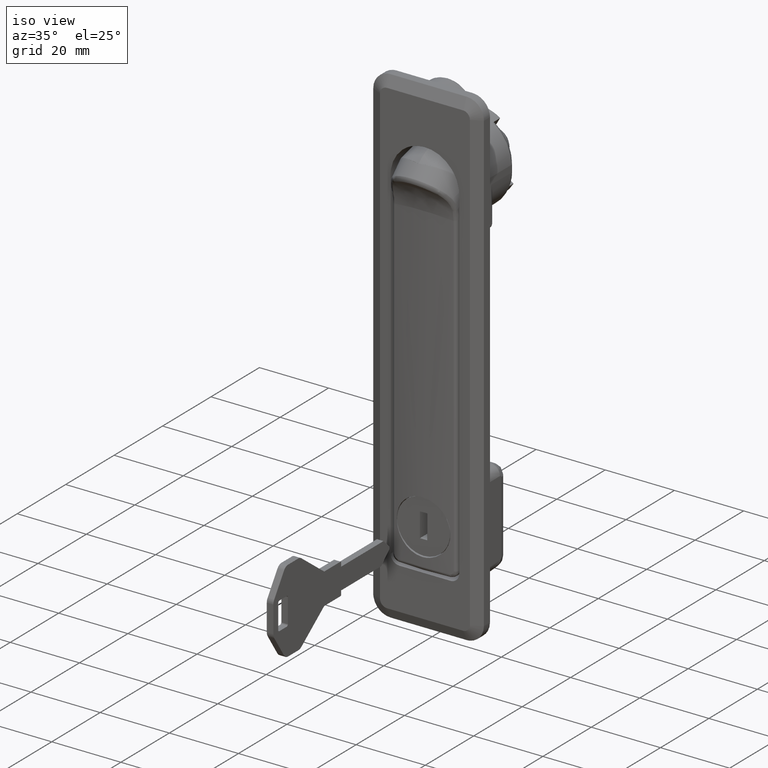
[diagram: clean part render]
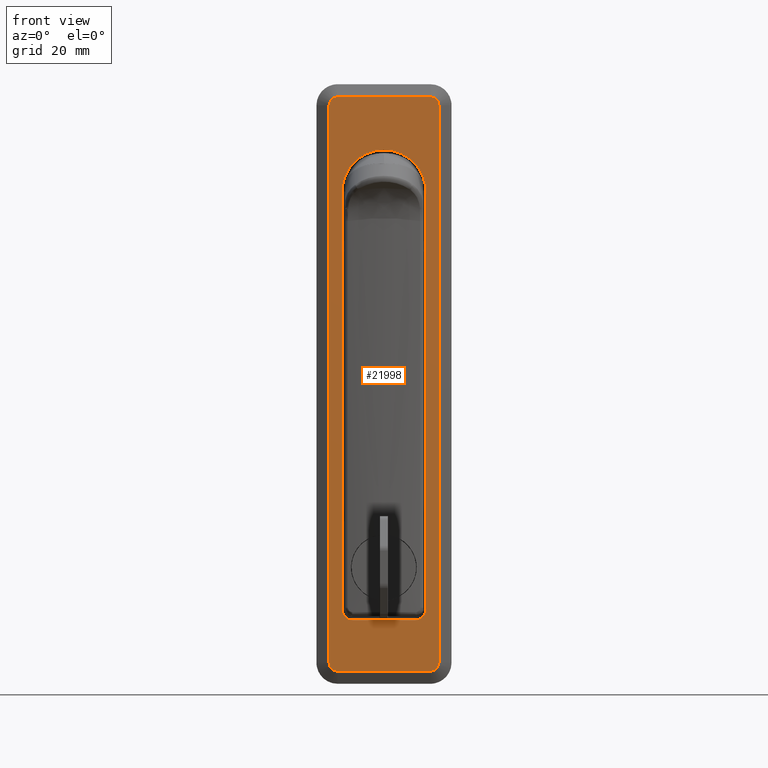
[diagram: tour spotlight — one face highlighted and labeled with its STEP entity id]
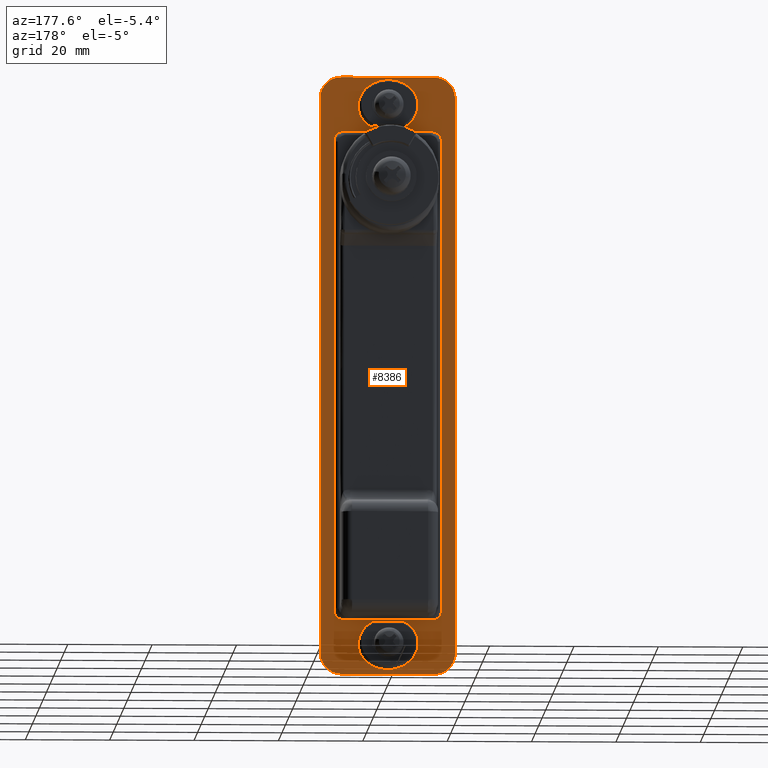
[diagram: tour spotlight — one face highlighted and labeled with its STEP entity id]
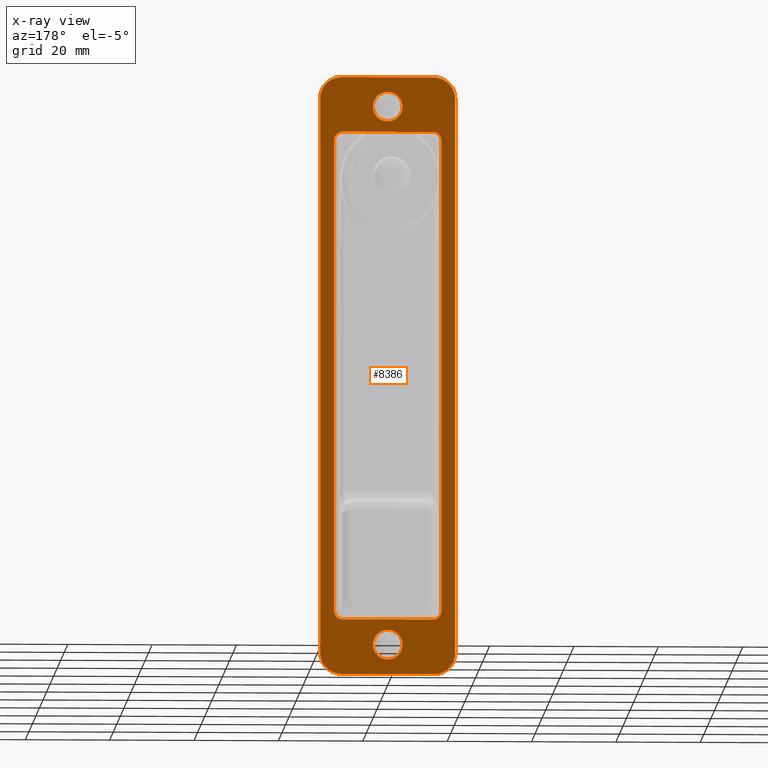
[diagram: x-ray of the same camera — body ghosted, this tour face saturated]
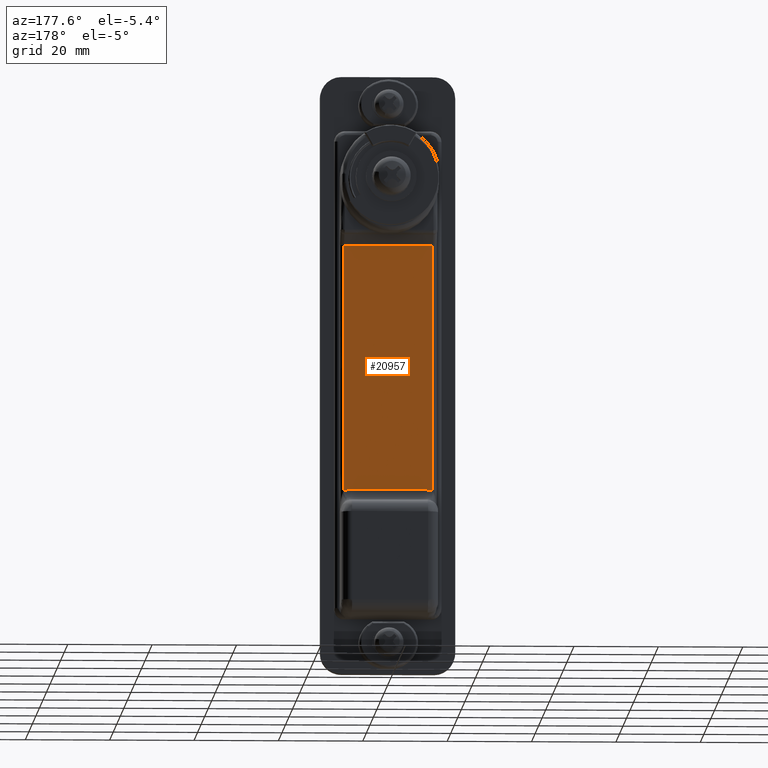
[diagram: tour spotlight — one face highlighted and labeled with its STEP entity id]
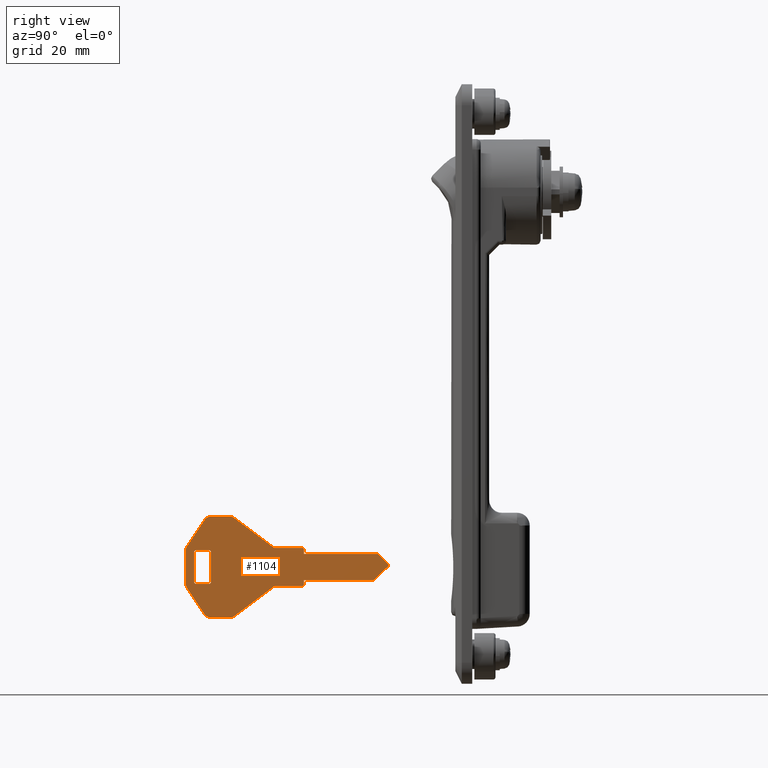
[diagram: tour spotlight — one face highlighted and labeled with its STEP entity id]
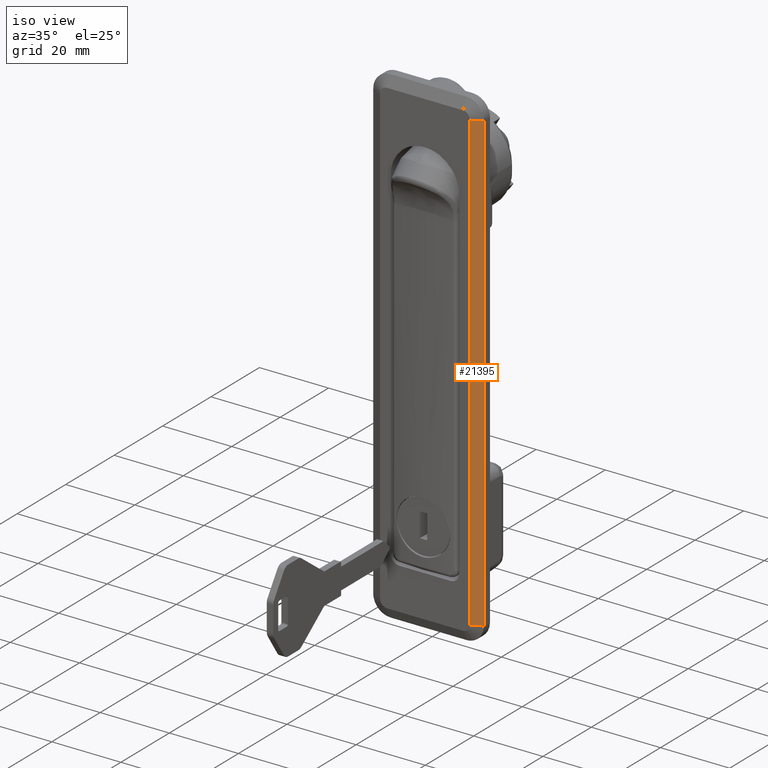
[diagram: tour spotlight — one face highlighted and labeled with its STEP entity id]
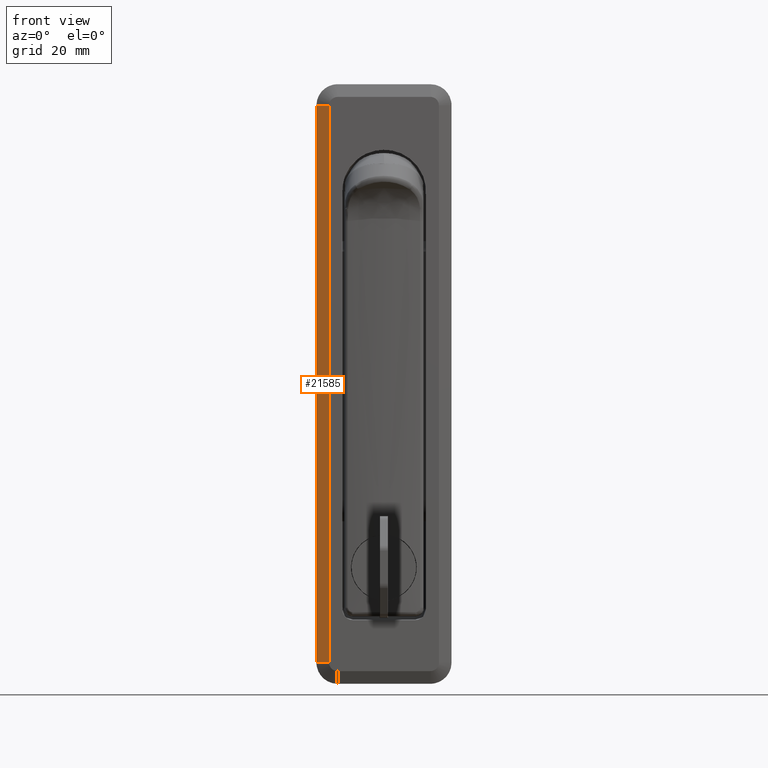
[diagram: tour spotlight — one face highlighted and labeled with its STEP entity id]
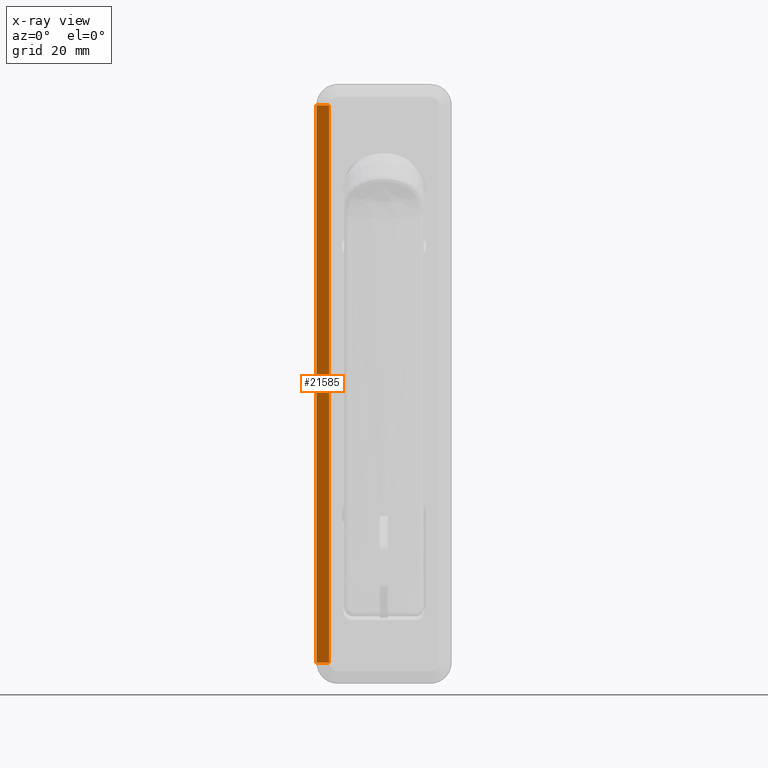
[diagram: x-ray of the same camera — body ghosted, this tour face saturated]
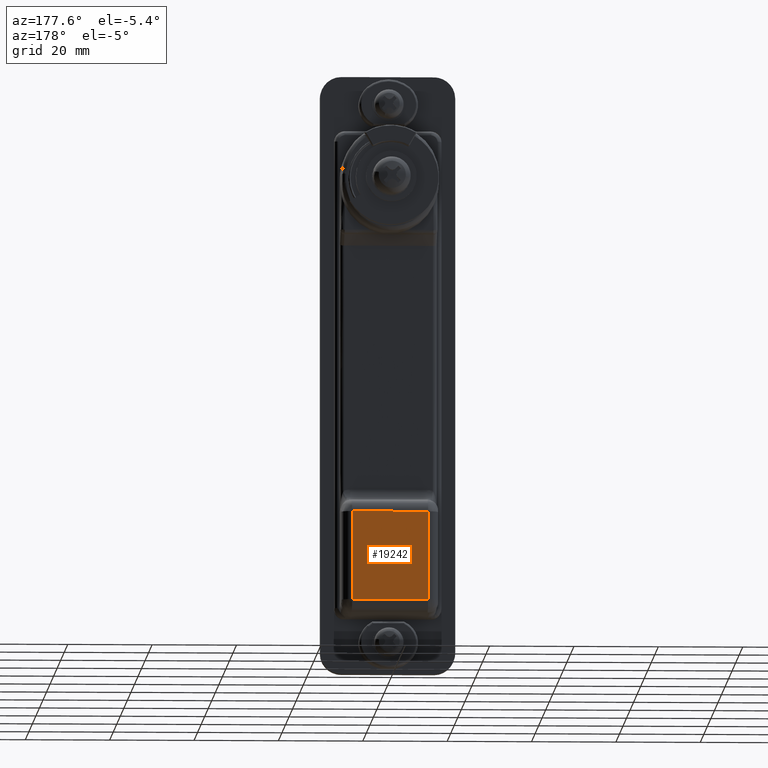
[diagram: tour spotlight — one face highlighted and labeled with its STEP entity id]
A machine part: a face-by-face anatomy tour. The part has 444 B-rep faces; the first image is the clean iso view, then the 7 largest visible faces are spotlighted one at a time (largest first), each with its STEP entity span.

Face 1 — front view, entity #21998. In plain terms, the highlighted face is a freeform B-spline surface patch.
Definition (entity closure, byte-faithful):
#15251=CARTESIAN_POINT('',(-2.999999999999914,6.532019941670750,7.505678882127560));
#15252=VERTEX_POINT('',#15251);
#15253=CARTESIAN_POINT('',(-2.999999999999915,9.900000000000000,-0.996242942257537));
#15254=VERTEX_POINT('',#15253);
#15255=CARTESIAN_POINT('',(-2.999999999999914,6.532019941670750,7.505678882127560));
#15256=CARTESIAN_POINT('',(-2.999999999999916,10.415455777388248,4.126013868495009));
#15257=CARTESIAN_POINT('',(-2.999999999999915,9.900000000000000,-0.996242942257537));
#15265=(BOUNDED_CURVE()B_SPLINE_CURVE(2,(#15255,#15256,#15257),.UNSPECIFIED.,.F.,.U.)B_SPLINE_CURVE_WITH_KNOTS((3,3),(0.715815837195781,1.0),.UNSPECIFIED.)CURVE()GEOMETRIC_REPRESENTATION_ITEM()RATIONAL_B_SPLINE_CURVE((0.961993601810028,0.871118889085292,1.0))REPRESENTATION_ITEM(''));
#15266=EDGE_CURVE('',#15252,#15254,#15265,.T.);
#15292=CARTESIAN_POINT('',(-2.999999999999915,-9.900000000000000,-0.996242942257537));
#15293=VERTEX_POINT('',#15292);
#15299=CARTESIAN_POINT('',(-2.999999999999915,-7.866967251687729,6.092070769510665));
#15300=VERTEX_POINT('',#15299);
#15301=CARTESIAN_POINT('',(-2.999999999999915,-9.900000000000000,-0.996242942257537));
#15302=CARTESIAN_POINT('',(-2.999999999999915,-10.297461334161515,2.953463541265195));
#15303=CARTESIAN_POINT('',(-2.999999999999915,-7.866967251687729,6.092070769510665));
#15311=(BOUNDED_CURVE()B_SPLINE_CURVE(2,(#15301,#15302,#15303),.UNSPECIFIED.,.F.,.U.)B_SPLINE_CURVE_WITH_KNOTS((3,3),(0.0,0.225792204121895),.UNSPECIFIED.)CURVE()GEOMETRIC_REPRESENTATION_ITEM()RATIONAL_B_SPLINE_CURVE((1.0,0.897600380626565,0.933926975810556))REPRESENTATION_ITEM(''));
#15312=EDGE_CURVE('',#15293,#15300,#15311,.T.);
#15385=CARTESIAN_POINT('',(-2.999999999999915,-7.866967251687729,6.092070769510665));
#15386=CARTESIAN_POINT('',(-2.999999999999915,-6.774626130811294,7.502660395075758));
#15387=CARTESIAN_POINT('',(-2.999999999999915,-5.260239756699732,8.445849732385462));
#15388=CARTESIAN_POINT('',(-2.999999999999914,2.602085E-015,11.722029533674592));
#15389=CARTESIAN_POINT('',(-2.999999999999915,5.260239756699734,8.445849732385460));
#15390=CARTESIAN_POINT('',(-2.999999999999915,5.933608723083496,8.026462421441764));
#15391=CARTESIAN_POINT('',(-2.999999999999914,6.532019941670750,7.505678882127560));
#15399=(BOUNDED_CURVE()B_SPLINE_CURVE(2,(#15385,#15386,#15387,#15388,#15389,#15390,#15391),.UNSPECIFIED.,.F.,.U.)B_SPLINE_CURVE_WITH_KNOTS((3,2,2,3),(0.225792204121895,0.333333333333333,0.666666666666667,0.715815837195781),.UNSPECIFIED.)CURVE()GEOMETRIC_REPRESENTATION_ITEM()RATIONAL_B_SPLINE_CURVE((0.933926975810556,0.951228738206144,1.0,0.848829118832710,1.0,0.977710229747417,0.961993601810028))REPRESENTATION_ITEM(''));
#15400=EDGE_CURVE('',#15300,#15252,#15399,.T.);
#17830=CARTESIAN_POINT('',(-2.999999999999915,7.400000000000000,-101.421151640079400));
#17831=VERTEX_POINT('',#17830);
#17832=CARTESIAN_POINT('',(-2.999999999999915,9.900000000000000,-98.919158912720107));
#17833=VERTEX_POINT('',#17832);
#17834=CARTESIAN_POINT('',(-2.999999999999915,7.400000000000000,-101.421151640079400));
#17835=CARTESIAN_POINT('',(-2.999999999999917,7.565134552396129,-101.421151640079400));
#17836=CARTESIAN_POINT('',(-2.999999999999917,7.727507471028567,-101.404938166329600));
#17837=CARTESIAN_POINT('',(-2.999999999999915,7.967094179171564,-101.357294523591090));
#17838=CARTESIAN_POINT('',(-2.999999999999916,8.046289380652135,-101.337497168259900));
#17839=CARTESIAN_POINT('',(-2.999999999999915,8.203315359883117,-101.289891964452710));
#17840=CARTESIAN_POINT('',(-2.999999999999916,8.281356629570025,-101.261950558978400));
#17841=CARTESIAN_POINT('',(-2.999999999999915,8.508363769184808,-101.167811201570800));
#17842=CARTESIAN_POINT('',(-2.999999999999915,8.651916844678889,-101.091003827384100));
#17843=CARTESIAN_POINT('',(-2.999999999999915,8.821716513535511,-100.977596530237310));
#17844=CARTESIAN_POINT('',(-2.999999999999915,8.855190025126317,-100.954037338331400));
#17845=CARTESIAN_POINT('',(-2.999999999999914,8.921148730586085,-100.905135568406610));
#17846=CARTESIAN_POINT('',(-2.999999999999915,8.953718274885555,-100.879722325719800));
#17847=CARTESIAN_POINT('',(-2.999999999999915,9.049243074541874,-100.801300551018900));
#17848=CARTESIAN_POINT('',(-2.999999999999915,9.109855343462710,-100.746284553411300));
#17849=CARTESIAN_POINT('',(-2.999999999999915,9.282767990830998,-100.573289159143400));
#17850=CARTESIAN_POINT('',(-2.999999999999915,9.386228539302907,-100.447437460519300));
#17851=CARTESIAN_POINT('',(-2.999999999999917,9.500438338240601,-100.276661399122800));
#17852=CARTESIAN_POINT('',(-2.999999999999915,9.522573789491386,-100.241728535084500));
#17853=CARTESIAN_POINT('',(-2.999999999999916,9.564899475081171,-100.171129008946100));
#17854=CARTESIAN_POINT('',(-2.999999999999915,9.585113353341690,-100.135438658561500));
#17855=CARTESIAN_POINT('',(-2.999999999999917,9.642960692157939,-100.027217494289600));
#17856=CARTESIAN_POINT('',(-2.999999999999915,9.712652232020870,-99.879861077705414));
#17857=CARTESIAN_POINT('',(-2.999999999999916,9.767693443972792,-99.726474686299952));
#17858=CARTESIAN_POINT('',(-2.999999999999916,9.803406424266182,-99.609143171366370));
#17859=CARTESIAN_POINT('',(-2.999999999999914,9.814381121959491,-99.569650037417588));
#17860=CARTESIAN_POINT('',(-2.999999999999917,9.834438169003860,-99.489884891878162));
#17861=CARTESIAN_POINT('',(-2.999999999999916,9.843530859907293,-99.449542715535856));
#17862=CARTESIAN_POINT('',(-2.999999999999916,9.883824057495179,-99.247618373579897));
#17863=CARTESIAN_POINT('',(-2.999999999999916,9.900000000000011,-99.084289752708472));
#17864=CARTESIAN_POINT('',(-2.999999999999915,9.900000000000000,-98.919158912720107));
#17865=B_SPLINE_CURVE_WITH_KNOTS('',3,(#17834,#17835,#17836,#17837,#17838,#17839,#17840,#17841,#17842,#17843,#17844,#17845,#17846,#17847,#17848,#17849,#17850,#17851,#17852,#17853,#17854,#17855,#17856,#17857,#17858,#17859,#17860,#17861,#17862,#17863,#17864),.UNSPECIFIED.,.F.,.U.,(4,2,2,2,2,2,2,2,2,2,2,1,2,2,2,4),(0.0,0.125000000000002,0.187500000000003,0.250000000000005,0.375000000000009,0.406250000000008,0.437500000000007,0.500000000000005,0.625000000000002,0.656250000000002,0.687500000000002,0.749999999999991,0.812499999999981,0.843749999999981,0.874999999999980,1.0),.UNSPECIFIED.);
#17866=EDGE_CURVE('',#17831,#17833,#17865,.T.);
#18402=CARTESIAN_POINT('',(-2.999999999999915,-9.900000000000000,-98.919158912720107));
#18403=VERTEX_POINT('',#18402);
#18404=CARTESIAN_POINT('',(-2.999999999999915,-7.400000000000000,-101.421151640079400));
#18405=VERTEX_POINT('',#18404);
#18406=CARTESIAN_POINT('',(-2.999999999999915,-9.900000000000000,-98.919158912720107));
#18407=CARTESIAN_POINT('',(-2.999999999999915,-9.900000000000008,-99.084292002045714));
#18408=CARTESIAN_POINT('',(-2.999999999999915,-9.883825564935862,-99.246671034342071));
#18409=CARTESIAN_POINT('',(-2.999999999999914,-9.836292038705915,-99.486277029107626));
#18410=CARTESIAN_POINT('',(-2.999999999999914,-9.816540102488398,-99.565480367663582));
#18411=CARTESIAN_POINT('',(-2.999999999999915,-9.769043333313835,-99.722526076471951));
#18412=CARTESIAN_POINT('',(-2.999999999999915,-9.741161468291233,-99.800591023160806));
#18413=CARTESIAN_POINT('',(-2.999999999999916,-9.647207147859984,-100.027695706793390));
#18414=CARTESIAN_POINT('',(-2.999999999999915,-9.570543103576037,-100.171324628593600));
#18415=CARTESIAN_POINT('',(-2.999999999999916,-9.457336231596029,-100.341230577724700));
#18416=CARTESIAN_POINT('',(-2.999999999999915,-9.433818205633653,-100.374725928698500));
#18417=CARTESIAN_POINT('',(-2.999999999999915,-9.385000903348391,-100.440729464633510));
#18418=CARTESIAN_POINT('',(-2.999999999999915,-9.359634471519463,-100.473318286891500));
#18419=CARTESIAN_POINT('',(-2.999999999999914,-9.281308486901784,-100.568957244067900));
#18420=CARTESIAN_POINT('',(-2.999999999999915,-9.226356950432935,-100.629643802944700));
#18421=CARTESIAN_POINT('',(-2.999999999999915,-9.053556769278247,-100.802774138816300));
#18422=CARTESIAN_POINT('',(-2.999999999999916,-8.927837645347033,-100.906372965019900));
#18423=CARTESIAN_POINT('',(-2.999999999999915,-8.757230531675139,-101.020746981148700));
#18424=CARTESIAN_POINT('',(-2.999999999999915,-8.722329553206254,-101.042916751507800));
#18425=CARTESIAN_POINT('',(-2.999999999999915,-8.651754988477777,-101.085330631300100));
#18426=CARTESIAN_POINT('',(-2.999999999999915,-8.616077214764408,-101.105586347667800));
#18427=CARTESIAN_POINT('',(-2.999999999999917,-8.507894201434942,-101.163552886044800));
#18428=CARTESIAN_POINT('',(-2.999999999999915,-8.360589783444285,-101.233386573954500));
#18429=CARTESIAN_POINT('',(-2.999999999999916,-8.207258850831163,-101.288539879018900));
#18430=CARTESIAN_POINT('',(-2.999999999999915,-8.089970638038773,-101.324326463911400));
#18431=CARTESIAN_POINT('',(-2.999999999999915,-8.050492222614446,-101.335323947474610));
#18432=CARTESIAN_POINT('',(-2.999999999999914,-7.970757152273805,-101.355423149900500));
#18433=CARTESIAN_POINT('',(-2.999999999999916,-7.930421231009581,-101.364537553475400));
#18434=CARTESIAN_POINT('',(-2.999999999999915,-7.728476772915388,-101.404935754996900));
#18435=CARTESIAN_POINT('',(-2.999999999999914,-7.565136841410714,-101.421151640079300));
#18436=CARTESIAN_POINT('',(-2.999999999999915,-7.400000000000001,-101.421151640079400));
#18437=B_SPLINE_CURVE_WITH_KNOTS('',3,(#18406,#18407,#18408,#18409,#18410,#18411,#18412,#18413,#18414,#18415,#18416,#18417,#18418,#18419,#18420,#18421,#18422,#18423,#18424,#18425,#18426,#18427,#18428,#18429,#18430,#18431,#18432,#18433,#18434,#18435,#18436),.UNSPECIFIED.,.F.,.U.,(4,2,2,2,2,2,2,2,2,2,2,1,2,2,2,4),(0.0,0.125000000000009,0.187500000000019,0.250000000000028,0.375000000000038,0.406250000000034,0.437500000000030,0.500000000000023,0.625000000000007,0.656250000000003,0.687499999999999,0.749999999999996,0.812499999999993,0.843749999999994,0.874999999999994,1.0),.UNSPECIFIED.);
#18438=EDGE_CURVE('',#18403,#18405,#18437,.T.);
#18718=CARTESIAN_POINT('',(-2.999999999999915,7.400000000000000,-101.421151640079400));
#18719=CARTESIAN_POINT('',(-2.999999999999915,-7.400000000000000,-101.421151640079400));
#18720=QUASI_UNIFORM_CURVE('',1,(#18718,#18719),.UNSPECIFIED.,.F.,.U.);
#18721=EDGE_CURVE('',#17831,#18405,#18720,.T.);
#18738=CARTESIAN_POINT('',(-2.999999999999915,-9.900000000000000,-0.996242942257537));
#18739=CARTESIAN_POINT('',(-2.999999999999915,-9.900000000000000,-98.919158912720107));
#18740=QUASI_UNIFORM_CURVE('',1,(#18738,#18739),.UNSPECIFIED.,.F.,.U.);
#18741=EDGE_CURVE('',#15293,#18403,#18740,.T.);
#18772=CARTESIAN_POINT('',(-2.999999999999915,9.900000000000000,-0.996242942257537));
#18773=CARTESIAN_POINT('',(-2.999999999999915,9.900000000000000,-98.919158912720107));
#18774=QUASI_UNIFORM_CURVE('',1,(#18772,#18773),.UNSPECIFIED.,.F.,.U.);
#18775=EDGE_CURVE('',#15254,#17833,#18774,.T.);
#21323=CARTESIAN_POINT('',(-2.999999999999915,-11.0,22.500000000000000));
#21324=VERTEX_POINT('',#21323);
#21330=CARTESIAN_POINT('',(-2.999999999999915,-13.0,20.500000000000000));
#21331=VERTEX_POINT('',#21330);
#21332=CARTESIAN_POINT('',(-2.999999999999915,-12.999999999999950,20.500000000000000));
#21333=CARTESIAN_POINT('',(-2.999999999999915,-12.999999999999956,22.499999999999957));
#21334=CARTESIAN_POINT('',(-2.999999999999915,-11.0,22.499999999999961));
#21342=(BOUNDED_CURVE()B_SPLINE_CURVE(2,(#21332,#21333,#21334),.UNSPECIFIED.,.F.,.U.)CURVE()GEOMETRIC_REPRESENTATION_ITEM()QUASI_UNIFORM_CURVE()RATIONAL_B_SPLINE_CURVE((1.0,0.707106781186548,1.0))REPRESENTATION_ITEM(''));
#21343=EDGE_CURVE('',#21331,#21324,#21342,.T.);
#21373=CARTESIAN_POINT('',(-2.999999999999915,-13.0,-111.500000000000000));
#21374=VERTEX_POINT('',#21373);
#21388=CARTESIAN_POINT('',(-2.999999999999915,-13.0,-111.500000000000000));
#21389=CARTESIAN_POINT('',(-2.999999999999915,-13.0,20.500000000000000));
#21390=QUASI_UNIFORM_CURVE('',1,(#21388,#21389),.UNSPECIFIED.,.F.,.U.);
#21391=EDGE_CURVE('',#21374,#21331,#21390,.T.);
#21403=CARTESIAN_POINT('',(-2.999999999999915,11.0,22.500000000000000));
#21404=VERTEX_POINT('',#21403);
#21410=CARTESIAN_POINT('',(-2.999999999999915,-11.0,22.500000000000000));
#21411=CARTESIAN_POINT('',(-2.999999999999915,11.0,22.500000000000000));
#21412=QUASI_UNIFORM_CURVE('',1,(#21410,#21411),.UNSPECIFIED.,.F.,.U.);
#21413=EDGE_CURVE('',#21324,#21404,#21412,.T.);
#21438=CARTESIAN_POINT('',(-2.999999999999915,-11.0,-113.500000000000000));
#21439=VERTEX_POINT('',#21438);
#21461=CARTESIAN_POINT('',(-2.999999999999915,-11.0,-113.500000000000000));
#21462=CARTESIAN_POINT('',(-2.999999999999915,-12.999999999999956,-113.499999999999960));
#21463=CARTESIAN_POINT('',(-2.999999999999915,-12.999999999999950,-111.500000000000000));
#21471=(BOUNDED_CURVE()B_SPLINE_CURVE(2,(#21461,#21462,#21463),.UNSPECIFIED.,.F.,.U.)CURVE()GEOMETRIC_REPRESENTATION_ITEM()QUASI_UNIFORM_CURVE()RATIONAL_B_SPLINE_CURVE((1.0,0.707106781186548,1.0))REPRESENTATION_ITEM(''));
#21472=EDGE_CURVE('',#21439,#21374,#21471,.T.);
#21493=CARTESIAN_POINT('',(-2.999999999999915,13.0,20.500000000000000));
#21494=VERTEX_POINT('',#21493);
#21500=CARTESIAN_POINT('',(-2.999999999999915,11.0,22.499999999999950));
#21501=CARTESIAN_POINT('',(-2.999999999999915,12.999999999999950,22.499999999999947));
#21502=CARTESIAN_POINT('',(-2.999999999999915,13.0,20.500000000000000));
#21510=(BOUNDED_CURVE()B_SPLINE_CURVE(2,(#21500,#21501,#21502),.UNSPECIFIED.,.F.,.U.)CURVE()GEOMETRIC_REPRESENTATION_ITEM()QUASI_UNIFORM_CURVE()RATIONAL_B_SPLINE_CURVE((1.0,0.707106781186547,1.0))REPRESENTATION_ITEM(''));
#21511=EDGE_CURVE('',#21404,#21494,#21510,.T.);
#21535=CARTESIAN_POINT('',(-2.999999999999915,11.0,-113.500000000000000));
#21536=VERTEX_POINT('',#21535);
#21550=CARTESIAN_POINT('',(-2.999999999999915,11.0,-113.500000000000000));
#21551=CARTESIAN_POINT('',(-2.999999999999915,-11.0,-113.500000000000000));
#21552=QUASI_UNIFORM_CURVE('',1,(#21550,#21551),.UNSPECIFIED.,.F.,.U.);
#21553=EDGE_CURVE('',#21536,#21439,#21552,.T.);
#21565=CARTESIAN_POINT('',(-2.999999999999915,13.0,-111.500000000000000));
#21566=VERTEX_POINT('',#21565);
#21572=CARTESIAN_POINT('',(-2.999999999999915,13.0,20.500000000000000));
#21573=CARTESIAN_POINT('',(-2.999999999999915,13.0,-111.500000000000000));
#21574=QUASI_UNIFORM_CURVE('',1,(#21572,#21573),.UNSPECIFIED.,.F.,.U.);
#21575=EDGE_CURVE('',#21494,#21566,#21574,.T.);
#21601=CARTESIAN_POINT('',(-2.999999999999915,12.999999999999959,-111.500000000000000));
#21602=CARTESIAN_POINT('',(-2.999999999999915,12.999999999999961,-113.499999999999960));
#21603=CARTESIAN_POINT('',(-2.999999999999915,11.0,-113.500000000000000));
#21611=(BOUNDED_CURVE()B_SPLINE_CURVE(2,(#21601,#21602,#21603),.UNSPECIFIED.,.F.,.U.)CURVE()GEOMETRIC_REPRESENTATION_ITEM()QUASI_UNIFORM_CURVE()RATIONAL_B_SPLINE_CURVE((1.0,0.707106781186548,1.0))REPRESENTATION_ITEM(''));
#21612=EDGE_CURVE('',#21566,#21536,#21611,.T.);
#21973=CARTESIAN_POINT('',(-2.999999999999915,-14.298699949606959,29.293199736405619));
#21974=CARTESIAN_POINT('',(-2.999999999999915,14.298700646981301,29.293199736405619));
#21975=CARTESIAN_POINT('',(-2.999999999999915,-14.298699949606959,-120.293203384209900));
#21976=CARTESIAN_POINT('',(-2.999999999999915,14.298700646981301,-120.293203384209900));
#21977=B_SPLINE_SURFACE_WITH_KNOTS('',1,1,((#21973,#21975),(#21974,#21976)),.UNSPECIFIED.,.F.,.F.,.U.,(2,2),(2,2),(0.0,28.597400596588258),(0.0,149.586403120615500),.UNSPECIFIED.);
#21978=ORIENTED_EDGE('',*,*,#21391,.T.);
#21979=ORIENTED_EDGE('',*,*,#21343,.T.);
#21980=ORIENTED_EDGE('',*,*,#21413,.T.);
#21981=ORIENTED_EDGE('',*,*,#21511,.T.);
#21982=ORIENTED_EDGE('',*,*,#21575,.T.);
#21983=ORIENTED_EDGE('',*,*,#21612,.T.);
#21984=ORIENTED_EDGE('',*,*,#21553,.T.);
#21985=ORIENTED_EDGE('',*,*,#21472,.T.);
#21986=EDGE_LOOP('',(#21978,#21979,#21980,#21981,#21982,#21983,#21984,#21985));
#21987=FACE_OUTER_BOUND('',#21986,.T.);
#21988=ORIENTED_EDGE('',*,*,#18775,.F.);
#21989=ORIENTED_EDGE('',*,*,#15266,.F.);
#21990=ORIENTED_EDGE('',*,*,#15400,.F.);
#21991=ORIENTED_EDGE('',*,*,#15312,.F.);
#21992=ORIENTED_EDGE('',*,*,#18741,.T.);
#21993=ORIENTED_EDGE('',*,*,#18438,.T.);
#21994=ORIENTED_EDGE('',*,*,#18721,.F.);
#21995=ORIENTED_EDGE('',*,*,#17866,.T.);
#21996=EDGE_LOOP('',(#21988,#21989,#21990,#21991,#21992,#21993,#21994,#21995));
#21997=FACE_BOUND('',#21996,.T.);
#21998=ADVANCED_FACE('',(#21987,#21997),#21977,.T.);

Face 2 — auxiliary view, entity #8386. An x-ray twin of the same camera follows (body ghosted, this face saturated) — the face is partly hidden behind the body. In plain terms, the highlighted face is a freeform B-spline surface patch.
Definition (entity closure, byte-faithful):
#7679=CARTESIAN_POINT('',(1.000000000000112,3.489210668062563,18.225393164909551));
#7680=VERTEX_POINT('',#7679);
#7686=CARTESIAN_POINT('',(1.000000000000112,0.0,22.0));
#7687=VERTEX_POINT('',#7686);
#7688=CARTESIAN_POINT('',(1.000000000000112,3.489210668062563,18.225393164909551));
#7689=CARTESIAN_POINT('',(1.000000000000112,3.500000000000000,18.362484625429968));
#7690=CARTESIAN_POINT('',(1.000000000000112,3.500000000000000,18.500000000000000));
#7691=CARTESIAN_POINT('',(1.000000000000112,3.500000000000000,21.999999999999993));
#7692=CARTESIAN_POINT('',(1.000000000000112,0.0,22.0));
#7700=(BOUNDED_CURVE()B_SPLINE_CURVE(2,(#7688,#7689,#7690,#7691,#7692),.UNSPECIFIED.,.F.,.U.)B_SPLINE_CURVE_WITH_KNOTS((3,2,3),(0.736331300628542,0.750000000000000,1.0),.UNSPECIFIED.)CURVE()GEOMETRIC_REPRESENTATION_ITEM()RATIONAL_B_SPLINE_CURVE((0.969723356162999,0.983986122576402,1.0,0.707106781186547,1.0))REPRESENTATION_ITEM(''));
#7701=EDGE_CURVE('',#7680,#7687,#7700,.T.);
#7703=CARTESIAN_POINT('',(1.000000000000112,-3.489210668062563,18.774606835090449));
#7704=VERTEX_POINT('',#7703);
#7705=CARTESIAN_POINT('',(1.000000000000112,0.0,22.0));
#7706=CARTESIAN_POINT('',(1.000000000000112,-3.235366720723745,21.999999999999996));
#7707=CARTESIAN_POINT('',(1.000000000000112,-3.489210668062563,18.774606835090456));
#7715=(BOUNDED_CURVE()B_SPLINE_CURVE(2,(#7705,#7706,#7707),.UNSPECIFIED.,.F.,.U.)B_SPLINE_CURVE_WITH_KNOTS((3,3),(0.0,0.236331300628542),.UNSPECIFIED.)CURVE()GEOMETRIC_REPRESENTATION_ITEM()RATIONAL_B_SPLINE_CURVE((1.0,0.723120658610146,0.969723356162999))REPRESENTATION_ITEM(''));
#7716=EDGE_CURVE('',#7687,#7704,#7715,.T.);
#7762=CARTESIAN_POINT('',(1.000000000000112,0.0,15.0));
#7763=VERTEX_POINT('',#7762);
#7764=CARTESIAN_POINT('',(1.000000000000112,-3.489210668062563,18.774606835090452));
#7765=CARTESIAN_POINT('',(1.000000000000112,-3.500000000000000,18.637515374570036));
#7766=CARTESIAN_POINT('',(1.000000000000112,-3.500000000000000,18.500000000000000));
#7767=CARTESIAN_POINT('',(1.000000000000112,-3.500000000000000,14.999999999999996));
#7768=CARTESIAN_POINT('',(1.000000000000112,0.0,15.0));
#7776=(BOUNDED_CURVE()B_SPLINE_CURVE(2,(#7764,#7765,#7766,#7767,#7768),.UNSPECIFIED.,.F.,.U.)B_SPLINE_CURVE_WITH_KNOTS((3,2,3),(0.236331300628542,0.250000000000000,0.500000000000000),.UNSPECIFIED.)CURVE()GEOMETRIC_REPRESENTATION_ITEM()RATIONAL_B_SPLINE_CURVE((0.969723356162999,0.983986122576402,1.0,0.707106781186547,1.0))REPRESENTATION_ITEM(''));
#7777=EDGE_CURVE('',#7704,#7763,#7776,.T.);
#7779=CARTESIAN_POINT('',(1.000000000000112,0.0,15.0));
#7780=CARTESIAN_POINT('',(1.000000000000112,3.235366720723754,14.999999999999996));
#7781=CARTESIAN_POINT('',(1.000000000000112,3.489210668062563,18.225393164909548));
#7789=(BOUNDED_CURVE()B_SPLINE_CURVE(2,(#7779,#7780,#7781),.UNSPECIFIED.,.F.,.U.)B_SPLINE_CURVE_WITH_KNOTS((3,3),(0.500000000000000,0.736331300628543),.UNSPECIFIED.)CURVE()GEOMETRIC_REPRESENTATION_ITEM()RATIONAL_B_SPLINE_CURVE((1.0,0.723120658610146,0.969723356163000))REPRESENTATION_ITEM(''));
#7790=EDGE_CURVE('',#7763,#7680,#7789,.T.);
#7861=CARTESIAN_POINT('',(1.000000000000112,3.489210668062563,-109.774606835090490));
#7862=VERTEX_POINT('',#7861);
#7868=CARTESIAN_POINT('',(1.000000000000112,0.0,-106.0));
#7869=VERTEX_POINT('',#7868);
#7870=CARTESIAN_POINT('',(1.000000000000112,3.489210668062563,-109.774606835090450));
#7871=CARTESIAN_POINT('',(1.000000000000112,3.500000000000000,-109.637515374570090));
#7872=CARTESIAN_POINT('',(1.000000000000112,3.500000000000000,-109.500000000000000));
#7873=CARTESIAN_POINT('',(1.000000000000112,3.500000000000000,-106.000000000000030));
#7874=CARTESIAN_POINT('',(1.000000000000112,0.0,-106.0));
#7882=(BOUNDED_CURVE()B_SPLINE_CURVE(2,(#7870,#7871,#7872,#7873,#7874),.UNSPECIFIED.,.F.,.U.)B_SPLINE_CURVE_WITH_KNOTS((3,2,3),(0.736331300628542,0.750000000000000,1.0),.UNSPECIFIED.)CURVE()GEOMETRIC_REPRESENTATION_ITEM()RATIONAL_B_SPLINE_CURVE((0.969723356162999,0.983986122576401,1.0,0.707106781186547,1.0))REPRESENTATION_ITEM(''));
#7883=EDGE_CURVE('',#7862,#7869,#7882,.T.);
#7885=CARTESIAN_POINT('',(1.000000000000112,-3.489210668062563,-109.225393164909510));
#7886=VERTEX_POINT('',#7885);
#7887=CARTESIAN_POINT('',(1.000000000000112,0.0,-106.0));
#7888=CARTESIAN_POINT('',(1.000000000000112,-3.235366720723735,-106.0));
#7889=CARTESIAN_POINT('',(1.000000000000112,-3.489210668062563,-109.225393164909510));
#7897=(BOUNDED_CURVE()B_SPLINE_CURVE(2,(#7887,#7888,#7889),.UNSPECIFIED.,.F.,.U.)B_SPLINE_CURVE_WITH_KNOTS((3,3),(0.0,0.236331300628542),.UNSPECIFIED.)CURVE()GEOMETRIC_REPRESENTATION_ITEM()RATIONAL_B_SPLINE_CURVE((1.0,0.723120658610147,0.969723356162998))REPRESENTATION_ITEM(''));
#7898=EDGE_CURVE('',#7869,#7886,#7897,.T.);
#7944=CARTESIAN_POINT('',(1.000000000000112,0.0,-113.0));
#7945=VERTEX_POINT('',#7944);
#7946=CARTESIAN_POINT('',(1.000000000000112,-3.489210668062563,-109.225393164909510));
#7947=CARTESIAN_POINT('',(1.000000000000112,-3.500000000000000,-109.362484625430010));
#7948=CARTESIAN_POINT('',(1.000000000000112,-3.500000000000000,-109.500000000000000));
#7949=CARTESIAN_POINT('',(1.000000000000112,-3.500000000000000,-113.0));
#7950=CARTESIAN_POINT('',(1.000000000000112,0.0,-113.0));
#7958=(BOUNDED_CURVE()B_SPLINE_CURVE(2,(#7946,#7947,#7948,#7949,#7950),.UNSPECIFIED.,.F.,.U.)B_SPLINE_CURVE_WITH_KNOTS((3,2,3),(0.236331300628542,0.250000000000000,0.500000000000000),.UNSPECIFIED.)CURVE()GEOMETRIC_REPRESENTATION_ITEM()RATIONAL_B_SPLINE_CURVE((0.969723356162998,0.983986122576401,1.0,0.707106781186547,1.0))REPRESENTATION_ITEM(''));
#7959=EDGE_CURVE('',#7886,#7945,#7958,.T.);
#7961=CARTESIAN_POINT('',(1.000000000000112,0.0,-113.0));
#7962=CARTESIAN_POINT('',(1.000000000000112,3.235366720723754,-113.000000000000010));
#7963=CARTESIAN_POINT('',(1.000000000000112,3.489210668062563,-109.774606835090440));
#7971=(BOUNDED_CURVE()B_SPLINE_CURVE(2,(#7961,#7962,#7963),.UNSPECIFIED.,.F.,.U.)B_SPLINE_CURVE_WITH_KNOTS((3,3),(0.500000000000000,0.736331300628543),.UNSPECIFIED.)CURVE()GEOMETRIC_REPRESENTATION_ITEM()RATIONAL_B_SPLINE_CURVE((1.0,0.723120658610146,0.969723356163000))REPRESENTATION_ITEM(''));
#7972=EDGE_CURVE('',#7945,#7862,#7971,.T.);
#8189=CARTESIAN_POINT('',(1.000000000000084,-17.598399937977799,32.592899724776473));
#8190=CARTESIAN_POINT('',(1.000000000000084,17.598400796284679,32.592899724776473));
#8191=CARTESIAN_POINT('',(1.000000000000084,-17.598399937977799,-123.592903533513290));
#8192=CARTESIAN_POINT('',(1.000000000000084,17.598400796284679,-123.592903533513290));
#8193=B_SPLINE_SURFACE_WITH_KNOTS('',1,1,((#8189,#8191),(#8190,#8192)),.UNSPECIFIED.,.F.,.F.,.U.,(2,2),(2,2),(0.0,35.196800734262467),(0.0,156.185803258289810),.UNSPECIFIED.);
#8194=CARTESIAN_POINT('',(1.000000000000112,-11.0,25.500000000000000));
#8195=VERTEX_POINT('',#8194);
#8196=CARTESIAN_POINT('',(1.000000000000112,11.0,25.500000000000000));
#8197=VERTEX_POINT('',#8196);
#8198=CARTESIAN_POINT('',(1.000000000000112,-11.0,25.500000000000000));
#8199=CARTESIAN_POINT('',(1.000000000000112,11.0,25.500000000000000));
#8200=QUASI_UNIFORM_CURVE('',1,(#8198,#8199),.UNSPECIFIED.,.F.,.U.);
#8201=EDGE_CURVE('',#8195,#8197,#8200,.T.);
#8202=ORIENTED_EDGE('',*,*,#8201,.F.);
#8203=CARTESIAN_POINT('',(1.000000000000112,-16.0,20.500000000000000));
#8204=VERTEX_POINT('',#8203);
#8205=CARTESIAN_POINT('',(1.000000000000112,-11.0,25.500000000000000));
#8206=CARTESIAN_POINT('',(1.000000000000112,-15.999999999999998,25.500000000000007));
#8207=CARTESIAN_POINT('',(1.000000000000112,-16.0,20.500000000000000));
#8215=(BOUNDED_CURVE()B_SPLINE_CURVE(2,(#8205,#8206,#8207),.UNSPECIFIED.,.F.,.U.)CURVE()GEOMETRIC_REPRESENTATION_ITEM()QUASI_UNIFORM_CURVE()RATIONAL_B_SPLINE_CURVE((1.0,0.707106781186548,1.0))REPRESENTATION_ITEM(''));
#8216=EDGE_CURVE('',#8195,#8204,#8215,.T.);
#8217=ORIENTED_EDGE('',*,*,#8216,.T.);
#8218=CARTESIAN_POINT('',(1.000000000000112,-16.0,-111.500000000000000));
#8219=VERTEX_POINT('',#8218);
#8220=CARTESIAN_POINT('',(1.000000000000112,-16.0,-111.500000000000000));
#8221=CARTESIAN_POINT('',(1.000000000000112,-16.0,20.500000000000000));
#8222=QUASI_UNIFORM_CURVE('',1,(#8220,#8221),.UNSPECIFIED.,.F.,.U.);
#8223=EDGE_CURVE('',#8219,#8204,#8222,.T.);
#8224=ORIENTED_EDGE('',*,*,#8223,.F.);
#8225=CARTESIAN_POINT('',(1.000000000000112,-11.0,-116.500000000000000));
#8226=VERTEX_POINT('',#8225);
#8227=CARTESIAN_POINT('',(1.000000000000112,-16.0,-111.500000000000000));
#8228=CARTESIAN_POINT('',(1.000000000000112,-15.999999999999998,-116.500000000000010));
#8229=CARTESIAN_POINT('',(1.000000000000112,-11.0,-116.500000000000000));
#8237=(BOUNDED_CURVE()B_SPLINE_CURVE(2,(#8227,#8228,#8229),.UNSPECIFIED.,.F.,.U.)CURVE()GEOMETRIC_REPRESENTATION_ITEM()QUASI_UNIFORM_CURVE()RATIONAL_B_SPLINE_CURVE((1.0,0.707106781186548,1.0))REPRESENTATION_ITEM(''));
#8238=EDGE_CURVE('',#8219,#8226,#8237,.T.);
#8239=ORIENTED_EDGE('',*,*,#8238,.T.);
#8240=CARTESIAN_POINT('',(1.000000000000112,11.0,-116.500000000000000));
#8241=VERTEX_POINT('',#8240);
#8242=CARTESIAN_POINT('',(1.000000000000112,11.0,-116.500000000000000));
#8243=CARTESIAN_POINT('',(1.000000000000112,-11.0,-116.500000000000000));
#8244=QUASI_UNIFORM_CURVE('',1,(#8242,#8243),.UNSPECIFIED.,.F.,.U.);
#8245=EDGE_CURVE('',#8241,#8226,#8244,.T.);
#8246=ORIENTED_EDGE('',*,*,#8245,.F.);
#8247=CARTESIAN_POINT('',(1.000000000000112,16.0,-111.500000000000000));
#8248=VERTEX_POINT('',#8247);
#8249=CARTESIAN_POINT('',(1.000000000000112,11.0,-116.500000000000000));
#8250=CARTESIAN_POINT('',(1.000000000000112,15.999999999999998,-116.500000000000010));
#8251=CARTESIAN_POINT('',(1.000000000000112,16.0,-111.500000000000000));
#8259=(BOUNDED_CURVE()B_SPLINE_CURVE(2,(#8249,#8250,#8251),.UNSPECIFIED.,.F.,.U.)CURVE()GEOMETRIC_REPRESENTATION_ITEM()QUASI_UNIFORM_CURVE()RATIONAL_B_SPLINE_CURVE((1.0,0.707106781186548,1.0))REPRESENTATION_ITEM(''));
#8260=EDGE_CURVE('',#8241,#8248,#8259,.T.);
#8261=ORIENTED_EDGE('',*,*,#8260,.T.);
#8262=CARTESIAN_POINT('',(1.000000000000112,16.0,20.500000000000000));
#8263=VERTEX_POINT('',#8262);
#8264=CARTESIAN_POINT('',(1.000000000000112,16.0,20.500000000000000));
#8265=CARTESIAN_POINT('',(1.000000000000112,16.0,-111.500000000000000));
#8266=QUASI_UNIFORM_CURVE('',1,(#8264,#8265),.UNSPECIFIED.,.F.,.U.);
#8267=EDGE_CURVE('',#8263,#8248,#8266,.T.);
#8268=ORIENTED_EDGE('',*,*,#8267,.F.);
#8269=CARTESIAN_POINT('',(1.000000000000112,16.0,20.500000000000000));
#8270=CARTESIAN_POINT('',(1.000000000000112,15.999999999999998,25.500000000000007));
#8271=CARTESIAN_POINT('',(1.000000000000112,11.0,25.500000000000000));
#8279=(BOUNDED_CURVE()B_SPLINE_CURVE(2,(#8269,#8270,#8271),.UNSPECIFIED.,.F.,.U.)CURVE()GEOMETRIC_REPRESENTATION_ITEM()QUASI_UNIFORM_CURVE()RATIONAL_B_SPLINE_CURVE((1.0,0.707106781186548,1.0))REPRESENTATION_ITEM(''));
#8280=EDGE_CURVE('',#8263,#8197,#8279,.T.);
#8281=ORIENTED_EDGE('',*,*,#8280,.T.);
#8282=EDGE_LOOP('',(#8202,#8217,#8224,#8239,#8246,#8261,#8268,#8281));
#8283=FACE_OUTER_BOUND('',#8282,.T.);
#8284=CARTESIAN_POINT('',(1.000000000000112,-10.699999999999999,12.500000000000000));
#8285=VERTEX_POINT('',#8284);
#8286=CARTESIAN_POINT('',(1.000000000000112,10.699999999999999,12.500000000000000));
#8287=VERTEX_POINT('',#8286);
#8288=CARTESIAN_POINT('',(1.000000000000112,-10.699999999999999,12.500000000000000));
#8289=CARTESIAN_POINT('',(1.000000000000112,10.699999999999999,12.500000000000000));
#8290=QUASI_UNIFORM_CURVE('',1,(#8288,#8289),.UNSPECIFIED.,.F.,.U.);
#8291=EDGE_CURVE('',#8285,#8287,#8290,.T.);
#8292=ORIENTED_EDGE('',*,*,#8291,.T.);
#8293=CARTESIAN_POINT('',(1.000000000000112,12.699999999999999,10.500000000000000));
#8294=VERTEX_POINT('',#8293);
#8295=CARTESIAN_POINT('',(1.000000000000112,12.699999999999999,10.500000000000000));
#8296=CARTESIAN_POINT('',(1.000000000000112,12.699999999999999,12.500000000000000));
#8297=CARTESIAN_POINT('',(1.000000000000112,10.699999999999999,12.500000000000000));
#8305=(BOUNDED_CURVE()B_SPLINE_CURVE(2,(#8295,#8296,#8297),.UNSPECIFIED.,.F.,.U.)CURVE()GEOMETRIC_REPRESENTATION_ITEM()QUASI_UNIFORM_CURVE()RATIONAL_B_SPLINE_CURVE((1.0,0.707106781186548,1.0))REPRESENTATION_ITEM(''));
#8306=EDGE_CURVE('',#8294,#8287,#8305,.T.);
#8307=ORIENTED_EDGE('',*,*,#8306,.F.);
#8308=CARTESIAN_POINT('',(1.000000000000112,12.699999999999999,-101.500000000000000));
#8309=VERTEX_POINT('',#8308);
#8310=CARTESIAN_POINT('',(1.000000000000112,12.699999999999999,10.500000000000000));
#8311=CARTESIAN_POINT('',(1.000000000000112,12.699999999999999,-101.500000000000000));
#8312=QUASI_UNIFORM_CURVE('',1,(#8310,#8311),.UNSPECIFIED.,.F.,.U.);
#8313=EDGE_CURVE('',#8294,#8309,#8312,.T.);
#8314=ORIENTED_EDGE('',*,*,#8313,.T.);
#8315=CARTESIAN_POINT('',(1.000000000000112,10.699999999999999,-103.500000000000000));
#8316=VERTEX_POINT('',#8315);
#8317=CARTESIAN_POINT('',(1.000000000000112,10.699999999999999,-103.500000000000000));
#8318=CARTESIAN_POINT('',(1.000000000000112,12.699999999999999,-103.500000000000000));
#8319=CARTESIAN_POINT('',(1.000000000000112,12.699999999999999,-101.500000000000000));
#8327=(BOUNDED_CURVE()B_SPLINE_CURVE(2,(#8317,#8318,#8319),.UNSPECIFIED.,.F.,.U.)CURVE()GEOMETRIC_REPRESENTATION_ITEM()QUASI_UNIFORM_CURVE()RATIONAL_B_SPLINE_CURVE((1.0,0.707106781186548,1.0))REPRESENTATION_ITEM(''));
#8328=EDGE_CURVE('',#8316,#8309,#8327,.T.);
#8329=ORIENTED_EDGE('',*,*,#8328,.F.);
#8330=CARTESIAN_POINT('',(1.000000000000112,-10.699999999999999,-103.500000000000000));
#8331=VERTEX_POINT('',#8330);
#8332=CARTESIAN_POINT('',(1.000000000000112,10.699999999999999,-103.500000000000000));
#8333=CARTESIAN_POINT('',(1.000000000000112,-10.699999999999999,-103.500000000000000));
#8334=QUASI_UNIFORM_CURVE('',1,(#8332,#8333),.UNSPECIFIED.,.F.,.U.);
#8335=EDGE_CURVE('',#8316,#8331,#8334,.T.);
#8336=ORIENTED_EDGE('',*,*,#8335,.T.);
#8337=CARTESIAN_POINT('',(1.000000000000112,-12.699999999999999,-101.500000000000000));
#8338=VERTEX_POINT('',#8337);
#8339=CARTESIAN_POINT('',(1.000000000000112,-12.699999999999999,-101.500000000000000));
#8340=CARTESIAN_POINT('',(1.000000000000112,-12.699999999999999,-103.500000000000000));
#8341=CARTESIAN_POINT('',(1.000000000000112,-10.699999999999999,-103.500000000000000));
#8349=(BOUNDED_CURVE()B_SPLINE_CURVE(2,(#8339,#8340,#8341),.UNSPECIFIED.,.F.,.U.)CURVE()GEOMETRIC_REPRESENTATION_ITEM()QUASI_UNIFORM_CURVE()RATIONAL_B_SPLINE_CURVE((1.0,0.707106781186548,1.0))REPRESENTATION_ITEM(''));
#8350=EDGE_CURVE('',#8338,#8331,#8349,.T.);
#8351=ORIENTED_EDGE('',*,*,#8350,.F.);
#8352=CARTESIAN_POINT('',(1.000000000000112,-12.699999999999999,10.500000000000000));
#8353=VERTEX_POINT('',#8352);
#8354=CARTESIAN_POINT('',(1.000000000000112,-12.699999999999999,-101.500000000000000));
#8355=CARTESIAN_POINT('',(1.000000000000112,-12.699999999999999,10.500000000000000));
#8356=QUASI_UNIFORM_CURVE('',1,(#8354,#8355),.UNSPECIFIED.,.F.,.U.);
#8357=EDGE_CURVE('',#8338,#8353,#8356,.T.);
#8358=ORIENTED_EDGE('',*,*,#8357,.T.);
#8359=CARTESIAN_POINT('',(1.000000000000112,-10.699999999999999,12.500000000000000));
#8360=CARTESIAN_POINT('',(1.000000000000112,-12.699999999999999,12.500000000000000));
#8361=CARTESIAN_POINT('',(1.000000000000112,-12.699999999999999,10.500000000000000));
#8369=(BOUNDED_CURVE()B_SPLINE_CURVE(2,(#8359,#8360,#8361),.UNSPECIFIED.,.F.,.U.)CURVE()GEOMETRIC_REPRESENTATION_ITEM()QUASI_UNIFORM_CURVE()RATIONAL_B_SPLINE_CURVE((1.0,0.707106781186548,1.0))REPRESENTATION_ITEM(''));
#8370=EDGE_CURVE('',#8285,#8353,#8369,.T.);
#8371=ORIENTED_EDGE('',*,*,#8370,.F.);
#8372=EDGE_LOOP('',(#8292,#8307,#8314,#8329,#8336,#8351,#8358,#8371));
#8373=FACE_BOUND('',#8372,.T.);
#8374=ORIENTED_EDGE('',*,*,#7972,.F.);
#8375=ORIENTED_EDGE('',*,*,#7959,.F.);
#8376=ORIENTED_EDGE('',*,*,#7898,.F.);
#8377=ORIENTED_EDGE('',*,*,#7883,.F.);
#8378=EDGE_LOOP('',(#8374,#8375,#8376,#8377));
#8379=FACE_BOUND('',#8378,.T.);
#8380=ORIENTED_EDGE('',*,*,#7790,.F.);
#8381=ORIENTED_EDGE('',*,*,#7777,.F.);
#8382=ORIENTED_EDGE('',*,*,#7716,.F.);
#8383=ORIENTED_EDGE('',*,*,#7701,.F.);
#8384=EDGE_LOOP('',(#8380,#8381,#8382,#8383));
#8385=FACE_BOUND('',#8384,.T.);
#8386=ADVANCED_FACE('',(#8283,#8373,#8379,#8385),#8193,.F.);

Face 3 — auxiliary view, entity #20957. In plain terms, the highlighted face is a freeform B-spline surface patch.
Definition (entity closure, byte-faithful):
#16261=CARTESIAN_POINT('',(5.0,-10.500000000000000,-73.208497377870785));
#16262=VERTEX_POINT('',#16261);
#16293=CARTESIAN_POINT('',(5.0,-9.0,-73.0));
#16294=VERTEX_POINT('',#16293);
#16308=CARTESIAN_POINT('',(5.0,-10.499999999999989,-73.208497377870813));
#16309=CARTESIAN_POINT('',(5.000000000000001,-9.764490385526329,-73.0));
#16310=CARTESIAN_POINT('',(5.0,-9.0,-73.0));
#16318=(BOUNDED_CURVE()B_SPLINE_CURVE(2,(#16308,#16309,#16310),.UNSPECIFIED.,.F.,.U.)CURVE()GEOMETRIC_REPRESENTATION_ITEM()QUASI_UNIFORM_CURVE()RATIONAL_B_SPLINE_CURVE((1.0,0.990477507528987,1.0))REPRESENTATION_ITEM(''));
#16319=EDGE_CURVE('',#16262,#16294,#16318,.T.);
#16340=CARTESIAN_POINT('',(5.0,9.0,-73.0));
#16341=VERTEX_POINT('',#16340);
#16355=CARTESIAN_POINT('',(5.0,-9.0,-73.0));
#16356=CARTESIAN_POINT('',(5.0,9.0,-73.0));
#16357=QUASI_UNIFORM_CURVE('',1,(#16355,#16356),.UNSPECIFIED.,.F.,.U.);
#16358=EDGE_CURVE('',#16294,#16341,#16357,.T.);
#16522=CARTESIAN_POINT('',(5.0,10.500000000000000,-73.208497377870785));
#16523=VERTEX_POINT('',#16522);
#16537=CARTESIAN_POINT('',(5.0,9.0,-73.0));
#16538=CARTESIAN_POINT('',(5.000000000000001,9.764490385526329,-73.0));
#16539=CARTESIAN_POINT('',(5.0,10.499999999999989,-73.208497377870813));
#16547=(BOUNDED_CURVE()B_SPLINE_CURVE(2,(#16537,#16538,#16539),.UNSPECIFIED.,.F.,.U.)CURVE()GEOMETRIC_REPRESENTATION_ITEM()QUASI_UNIFORM_CURVE()RATIONAL_B_SPLINE_CURVE((1.0,0.990477507528987,1.0))REPRESENTATION_ITEM(''));
#16548=EDGE_CURVE('',#16341,#16523,#16547,.T.);
#19967=CARTESIAN_POINT('',(5.0,10.500000000000000,-14.950462000000060));
#19968=VERTEX_POINT('',#19967);
#20005=CARTESIAN_POINT('',(5.0,10.500000000000000,-73.208497377870785));
#20006=CARTESIAN_POINT('',(5.0,10.500000000000000,-14.950462000000060));
#20007=QUASI_UNIFORM_CURVE('',1,(#20005,#20006),.UNSPECIFIED.,.F.,.U.);
#20008=EDGE_CURVE('',#16523,#19968,#20007,.T.);
#20084=CARTESIAN_POINT('',(5.0,-10.500000000000000,-14.950462000000060));
#20085=VERTEX_POINT('',#20084);
#20086=CARTESIAN_POINT('',(5.0,-10.500000000000000,-14.950462000000060));
#20087=CARTESIAN_POINT('',(5.0,-10.500000000000000,-73.208497377870785));
#20088=QUASI_UNIFORM_CURVE('',1,(#20086,#20087),.UNSPECIFIED.,.F.,.U.);
#20089=EDGE_CURVE('',#20085,#16262,#20088,.T.);
#20933=CARTESIAN_POINT('',(5.0,-10.500000000000000,-14.950462000000060));
#20934=CARTESIAN_POINT('',(5.0,10.500000000000000,-14.950462000000060));
#20935=QUASI_UNIFORM_CURVE('',1,(#20933,#20934),.UNSPECIFIED.,.F.,.U.);
#20936=EDGE_CURVE('',#20085,#19968,#20935,.T.);
#20944=CARTESIAN_POINT('',(5.0,-11.548949959297930,-76.118485038310553));
#20945=CARTESIAN_POINT('',(5.0,-11.548949959297930,-12.040471735223170));
#20946=CARTESIAN_POINT('',(5.0,11.548950522561819,-76.118485038310553));
#20947=CARTESIAN_POINT('',(5.0,11.548950522561819,-12.040471735223170));
#20948=B_SPLINE_SURFACE_WITH_KNOTS('',1,1,((#20944,#20946),(#20945,#20947)),.UNSPECIFIED.,.F.,.F.,.U.,(2,2),(2,2),(0.0,64.078013303087374),(0.0,23.097900481859750),.UNSPECIFIED.);
#20949=ORIENTED_EDGE('',*,*,#20089,.T.);
#20950=ORIENTED_EDGE('',*,*,#16319,.T.);
#20951=ORIENTED_EDGE('',*,*,#16358,.T.);
#20952=ORIENTED_EDGE('',*,*,#16548,.T.);
#20953=ORIENTED_EDGE('',*,*,#20008,.T.);
#20954=ORIENTED_EDGE('',*,*,#20936,.F.);
#20955=EDGE_LOOP('',(#20949,#20950,#20951,#20952,#20953,#20954));
#20956=FACE_OUTER_BOUND('',#20955,.T.);
#20957=ADVANCED_FACE('',(#20956),#20948,.F.);

Face 4 — right view, entity #1104. In plain terms, the highlighted face is a freeform B-spline surface patch.
Definition (entity closure, byte-faithful):
#765=CARTESIAN_POINT('',(-69.274062019222328,-0.950000000000024,-53.651198555197709));
#766=CARTESIAN_POINT('',(-16.478922533406291,-0.950000000000024,-53.651198555197709));
#767=CARTESIAN_POINT('',(-69.274062019222328,-0.950000000000024,-80.048798869881665));
#768=CARTESIAN_POINT('',(-16.478922533406291,-0.950000000000024,-80.048798869881665));
#769=B_SPLINE_SURFACE_WITH_KNOTS('',1,1,((#765,#767),(#766,#768)),.UNSPECIFIED.,.F.,.F.,.U.,(2,2),(2,2),(0.0,52.795139485816037),(0.0,26.397600314683960),.UNSPECIFIED.);
#770=CARTESIAN_POINT('',(-66.540563773302793,-0.950000000000000,-61.846150593782198));
#771=VERTEX_POINT('',#770);
#772=CARTESIAN_POINT('',(-62.470195848308506,-0.950000000000000,-55.740599481754700));
#773=VERTEX_POINT('',#772);
#774=CARTESIAN_POINT('',(-66.540563773302793,-0.950000000000000,-61.846150593782198));
#775=CARTESIAN_POINT('',(-62.470195848308506,-0.950000000000000,-55.740599481754700));
#776=QUASI_UNIFORM_CURVE('',1,(#774,#775),.UNSPECIFIED.,.F.,.U.);
#777=EDGE_CURVE('',#771,#773,#776,.T.);
#778=ORIENTED_EDGE('',*,*,#777,.F.);
#779=CARTESIAN_POINT('',(-66.876463193805506,-0.950000000000000,-62.955551000000092));
#780=VERTEX_POINT('',#779);
#781=CARTESIAN_POINT('',(-66.540563773302864,-0.950000000000000,-61.846150593782149));
#782=CARTESIAN_POINT('',(-66.876463193805506,-0.950000000000000,-62.349999715504445));
#783=CARTESIAN_POINT('',(-66.876463193805506,-0.950000000000000,-62.955551000000092));
#791=(BOUNDED_CURVE()B_SPLINE_CURVE(2,(#781,#782,#783),.UNSPECIFIED.,.F.,.U.)CURVE()GEOMETRIC_REPRESENTATION_ITEM()QUASI_UNIFORM_CURVE()RATIONAL_B_SPLINE_CURVE((1.0,0.957092025290327,1.0))REPRESENTATION_ITEM(''));
#792=EDGE_CURVE('',#771,#780,#791,.T.);
#793=ORIENTED_EDGE('',*,*,#792,.T.);
#794=CARTESIAN_POINT('',(-66.876463193805506,-0.950000000000000,-70.744448999999904));
#795=VERTEX_POINT('',#794);
#796=CARTESIAN_POINT('',(-66.876463193805506,-0.950000000000000,-70.744448999999904));
#797=CARTESIAN_POINT('',(-66.876463193805506,-0.950000000000000,-62.955551000000092));
#798=QUASI_UNIFORM_CURVE('',1,(#796,#797),.UNSPECIFIED.,.F.,.U.);
#799=EDGE_CURVE('',#795,#780,#798,.T.);
#800=ORIENTED_EDGE('',*,*,#799,.F.);
#801=CARTESIAN_POINT('',(-66.540564193805508,-0.950000000000000,-71.853848999999897));
#802=VERTEX_POINT('',#801);
#803=CARTESIAN_POINT('',(-66.876463193805506,-0.950000000000000,-70.744448999999904));
#804=CARTESIAN_POINT('',(-66.876463193805506,-0.950000000000000,-71.349999972688295));
#805=CARTESIAN_POINT('',(-66.540564193805508,-0.950000000000000,-71.853848999999897));
#813=(BOUNDED_CURVE()B_SPLINE_CURVE(2,(#803,#804,#805),.UNSPECIFIED.,.F.,.U.)CURVE()GEOMETRIC_REPRESENTATION_ITEM()QUASI_UNIFORM_CURVE()RATIONAL_B_SPLINE_CURVE((1.0,0.957092066674873,1.0))REPRESENTATION_ITEM(''));
#814=EDGE_CURVE('',#795,#802,#813,.T.);
#815=ORIENTED_EDGE('',*,*,#814,.T.);
#816=CARTESIAN_POINT('',(-62.470195848308613,-0.950000000000000,-77.959400518245104));
#817=VERTEX_POINT('',#816);
#818=CARTESIAN_POINT('',(-62.470195848308613,-0.950000000000000,-77.959400518245104));
#819=CARTESIAN_POINT('',(-66.540564193805508,-0.950000000000000,-71.853848999999897));
#820=QUASI_UNIFORM_CURVE('',1,(#818,#819),.UNSPECIFIED.,.F.,.U.);
#821=EDGE_CURVE('',#817,#802,#820,.T.);
#822=ORIENTED_EDGE('',*,*,#821,.F.);
#823=CARTESIAN_POINT('',(-60.806096193805487,-0.950000000000000,-78.850000000000009));
#824=VERTEX_POINT('',#823);
#825=CARTESIAN_POINT('',(-62.470195848308663,-0.950000000000000,-77.959400518245133));
#826=CARTESIAN_POINT('',(-61.876463066608544,-0.950000000000000,-78.849999544928309));
#827=CARTESIAN_POINT('',(-60.806096193805487,-0.950000000000000,-78.849999999999824));
#835=(BOUNDED_CURVE()B_SPLINE_CURVE(2,(#825,#826,#827),.UNSPECIFIED.,.F.,.U.)CURVE()GEOMETRIC_REPRESENTATION_ITEM()QUASI_UNIFORM_CURVE()RATIONAL_B_SPLINE_CURVE((1.0,0.881674716908847,1.0))REPRESENTATION_ITEM(''));
#836=EDGE_CURVE('',#817,#824,#835,.T.);
#837=ORIENTED_EDGE('',*,*,#836,.T.);
#838=CARTESIAN_POINT('',(-56.543130193805403,-0.950000000000000,-78.850000000000009));
#839=VERTEX_POINT('',#838);
#840=CARTESIAN_POINT('',(-56.543130193805403,-0.950000000000000,-78.850000000000009));
#841=CARTESIAN_POINT('',(-60.806096193805487,-0.950000000000000,-78.850000000000009));
#842=QUASI_UNIFORM_CURVE('',1,(#840,#841),.UNSPECIFIED.,.F.,.U.);
#843=EDGE_CURVE('',#839,#824,#842,.T.);
#844=ORIENTED_EDGE('',*,*,#843,.F.);
#845=CARTESIAN_POINT('',(-55.343130193805500,-0.950000000000000,-78.450000000000003));
#846=VERTEX_POINT('',#845);
#847=CARTESIAN_POINT('',(-56.543130193805403,-0.950000000000000,-78.850000000000009));
#848=CARTESIAN_POINT('',(-55.876463527138782,-0.950000000000000,-78.850000000000009));
#849=CARTESIAN_POINT('',(-55.343130193805472,-0.950000000000000,-78.450000000000045));
#857=(BOUNDED_CURVE()B_SPLINE_CURVE(2,(#847,#848,#849),.UNSPECIFIED.,.F.,.U.)CURVE()GEOMETRIC_REPRESENTATION_ITEM()QUASI_UNIFORM_CURVE()RATIONAL_B_SPLINE_CURVE((1.0,0.948683298050520,1.0))REPRESENTATION_ITEM(''));
#858=EDGE_CURVE('',#839,#846,#857,.T.);
#859=ORIENTED_EDGE('',*,*,#858,.T.);
#860=CARTESIAN_POINT('',(-45.876463193805499,-0.950000000000000,-71.349999999999994));
#861=VERTEX_POINT('',#860);
#862=CARTESIAN_POINT('',(-45.876463193805499,-0.950000000000000,-71.349999999999994));
#863=CARTESIAN_POINT('',(-55.343130193805500,-0.950000000000000,-78.450000000000003));
#864=QUASI_UNIFORM_CURVE('',1,(#862,#863),.UNSPECIFIED.,.F.,.U.);
#865=EDGE_CURVE('',#861,#846,#864,.T.);
#866=ORIENTED_EDGE('',*,*,#865,.F.);
#867=CARTESIAN_POINT('',(-39.176463193805453,-0.950000000000000,-71.349999999999994));
#868=VERTEX_POINT('',#867);
#869=CARTESIAN_POINT('',(-39.176463193805453,-0.950000000000000,-71.349999999999994));
#870=CARTESIAN_POINT('',(-45.876463193805499,-0.950000000000000,-71.349999999999994));
#871=QUASI_UNIFORM_CURVE('',1,(#869,#870),.UNSPECIFIED.,.F.,.U.);
#872=EDGE_CURVE('',#868,#861,#871,.T.);
#873=ORIENTED_EDGE('',*,*,#872,.F.);
#874=CARTESIAN_POINT('',(-38.876463193805449,-0.950000000000000,-71.049999999999997));
#875=VERTEX_POINT('',#874);
#876=CARTESIAN_POINT('',(-39.176463193805453,-0.950000000000000,-71.349999999999994));
#877=CARTESIAN_POINT('',(-38.876463193805456,-0.950000000000000,-71.349999999999994));
#878=CARTESIAN_POINT('',(-38.876463193805449,-0.950000000000000,-71.049999999999997));
#886=(BOUNDED_CURVE()B_SPLINE_CURVE(2,(#876,#877,#878),.UNSPECIFIED.,.F.,.U.)CURVE()GEOMETRIC_REPRESENTATION_ITEM()QUASI_UNIFORM_CURVE()RATIONAL_B_SPLINE_CURVE((1.0,0.707106781186547,1.0))REPRESENTATION_ITEM(''));
#887=EDGE_CURVE('',#868,#875,#886,.T.);
#888=ORIENTED_EDGE('',*,*,#887,.T.);
#889=CARTESIAN_POINT('',(-38.876463193805449,-0.950000000000000,-69.950000000000003));
#890=VERTEX_POINT('',#889);
#891=CARTESIAN_POINT('',(-38.876463193805449,-0.950000000000000,-69.950000000000003));
#892=CARTESIAN_POINT('',(-38.876463193805449,-0.950000000000000,-71.049999999999997));
#893=QUASI_UNIFORM_CURVE('',1,(#891,#892),.UNSPECIFIED.,.F.,.U.);
#894=EDGE_CURVE('',#890,#875,#893,.T.);
#895=ORIENTED_EDGE('',*,*,#894,.F.);
#896=CARTESIAN_POINT('',(-22.376463193805449,-0.950000000000000,-69.950000000000003));
#897=VERTEX_POINT('',#896);
#898=CARTESIAN_POINT('',(-22.376463193805449,-0.950000000000000,-69.950000000000003));
#899=CARTESIAN_POINT('',(-38.876463193805449,-0.950000000000000,-69.950000000000003));
#900=QUASI_UNIFORM_CURVE('',1,(#898,#899),.UNSPECIFIED.,.F.,.U.);
#901=EDGE_CURVE('',#897,#890,#900,.T.);
#902=ORIENTED_EDGE('',*,*,#901,.F.);
#903=CARTESIAN_POINT('',(-19.034368725177352,-0.950000000000000,-66.814652402342304));
#904=VERTEX_POINT('',#903);
#905=CARTESIAN_POINT('',(-19.034368725177352,-0.950000000000000,-66.814652402342304));
#906=CARTESIAN_POINT('',(-22.376463193805449,-0.950000000000000,-69.950000000000003));
#907=QUASI_UNIFORM_CURVE('',1,(#905,#906),.UNSPECIFIED.,.F.,.U.);
#908=EDGE_CURVE('',#904,#897,#907,.T.);
#909=ORIENTED_EDGE('',*,*,#908,.F.);
#910=CARTESIAN_POINT('',(-19.023445193805451,-0.950000000000000,-66.095912000000013));
#911=VERTEX_POINT('',#910);
#912=CARTESIAN_POINT('',(-19.034368725177320,-0.950000000000000,-66.814652402342332));
#913=CARTESIAN_POINT('',(-18.879742839784779,-0.950000000000000,-66.669591901548344));
#914=CARTESIAN_POINT('',(-18.876520929670178,-0.950000000000000,-66.457598192634009));
#915=CARTESIAN_POINT('',(-18.873299019555589,-0.950000000000000,-66.245604483719688));
#916=CARTESIAN_POINT('',(-19.023445193805451,-0.950000000000000,-66.095912000000013));
#924=(BOUNDED_CURVE()B_SPLINE_CURVE(2,(#912,#913,#914,#915,#916),.UNSPECIFIED.,.F.,.U.)B_SPLINE_CURVE_WITH_KNOTS((3,2,3),(0.0,0.500000000000000,1.0),.UNSPECIFIED.)CURVE()GEOMETRIC_REPRESENTATION_ITEM()RATIONAL_B_SPLINE_CURVE((1.0,0.920649968654266,1.0,0.920649968654266,1.0))REPRESENTATION_ITEM(''));
#925=EDGE_CURVE('',#904,#911,#924,.T.);
#926=ORIENTED_EDGE('',*,*,#925,.T.);
#927=CARTESIAN_POINT('',(-21.376463193805449,-0.950000000000000,-63.750000000000000));
#928=VERTEX_POINT('',#927);
#929=CARTESIAN_POINT('',(-21.376463193805449,-0.950000000000000,-63.750000000000000));
#930=CARTESIAN_POINT('',(-19.023445193805451,-0.950000000000000,-66.095912000000013));
#931=QUASI_UNIFORM_CURVE('',1,(#929,#930),.UNSPECIFIED.,.F.,.U.);
#932=EDGE_CURVE('',#928,#911,#931,.T.);
#933=ORIENTED_EDGE('',*,*,#932,.F.);
#934=CARTESIAN_POINT('',(-38.876463193805449,-0.950000000000000,-63.750000000000000));
#935=VERTEX_POINT('',#934);
#936=CARTESIAN_POINT('',(-38.876463193805449,-0.950000000000000,-63.750000000000000));
#937=CARTESIAN_POINT('',(-21.376463193805449,-0.950000000000000,-63.750000000000000));
#938=QUASI_UNIFORM_CURVE('',1,(#936,#937),.UNSPECIFIED.,.F.,.U.);
#939=EDGE_CURVE('',#935,#928,#938,.T.);
#940=ORIENTED_EDGE('',*,*,#939,.F.);
#941=CARTESIAN_POINT('',(-38.876463193805449,-0.950000000000000,-62.649999999999999));
#942=VERTEX_POINT('',#941);
#943=CARTESIAN_POINT('',(-38.876463193805449,-0.950000000000000,-62.649999999999999));
#944=CARTESIAN_POINT('',(-38.876463193805449,-0.950000000000000,-63.750000000000000));
#945=QUASI_UNIFORM_CURVE('',1,(#943,#944),.UNSPECIFIED.,.F.,.U.);
#946=EDGE_CURVE('',#942,#935,#945,.T.);
#947=ORIENTED_EDGE('',*,*,#946,.F.);
#948=CARTESIAN_POINT('',(-39.176463193805453,-0.950000000000000,-62.350000000000001));
#949=VERTEX_POINT('',#948);
#950=CARTESIAN_POINT('',(-38.876463193805449,-0.950000000000000,-62.649999999999999));
#951=CARTESIAN_POINT('',(-38.876463193805456,-0.950000000000000,-62.349999999999987));
#952=CARTESIAN_POINT('',(-39.176463193805453,-0.950000000000000,-62.349999999999987));
#960=(BOUNDED_CURVE()B_SPLINE_CURVE(2,(#950,#951,#952),.UNSPECIFIED.,.F.,.U.)CURVE()GEOMETRIC_REPRESENTATION_ITEM()QUASI_UNIFORM_CURVE()RATIONAL_B_SPLINE_CURVE((1.0,0.707106781186547,1.0))REPRESENTATION_ITEM(''));
#961=EDGE_CURVE('',#942,#949,#960,.T.);
#962=ORIENTED_EDGE('',*,*,#961,.T.);
#963=CARTESIAN_POINT('',(-45.876463193805499,-0.950000000000000,-62.350000000000001));
#964=VERTEX_POINT('',#963);
#965=CARTESIAN_POINT('',(-45.876463193805499,-0.950000000000000,-62.350000000000001));
#966=CARTESIAN_POINT('',(-39.176463193805453,-0.950000000000000,-62.350000000000001));
#967=QUASI_UNIFORM_CURVE('',1,(#965,#966),.UNSPECIFIED.,.F.,.U.);
#968=EDGE_CURVE('',#964,#949,#967,.T.);
#969=ORIENTED_EDGE('',*,*,#968,.F.);
#970=CARTESIAN_POINT('',(-55.343130183915498,-0.950000000000000,-55.250000007417313));
#971=VERTEX_POINT('',#970);
#972=CARTESIAN_POINT('',(-55.343130183915498,-0.950000000000000,-55.250000007417313));
#973=CARTESIAN_POINT('',(-45.876463193805499,-0.950000000000000,-62.350000000000001));
#974=QUASI_UNIFORM_CURVE('',1,(#972,#973),.UNSPECIFIED.,.F.,.U.);
#975=EDGE_CURVE('',#971,#964,#974,.T.);
#976=ORIENTED_EDGE('',*,*,#975,.F.);
#977=CARTESIAN_POINT('',(-56.543130193805403,-0.950000000000000,-54.850000000000001));
#978=VERTEX_POINT('',#977);
#979=CARTESIAN_POINT('',(-55.343130183915562,-0.950000000000000,-55.250000007417377));
#980=CARTESIAN_POINT('',(-55.876463520270789,-0.950000000000000,-54.849999999999994));
#981=CARTESIAN_POINT('',(-56.543130193805403,-0.950000000000000,-54.849999999999987));
#989=(BOUNDED_CURVE()B_SPLINE_CURVE(2,(#979,#980,#981),.UNSPECIFIED.,.F.,.U.)CURVE()GEOMETRIC_REPRESENTATION_ITEM()QUASI_UNIFORM_CURVE()RATIONAL_B_SPLINE_CURVE((1.0,0.948683297073188,1.0))REPRESENTATION_ITEM(''));
#990=EDGE_CURVE('',#971,#978,#989,.T.);
#991=ORIENTED_EDGE('',*,*,#990,.T.);
#992=CARTESIAN_POINT('',(-60.806095343496096,-0.950000000000000,-54.850000000000001));
#993=VERTEX_POINT('',#992);
#994=CARTESIAN_POINT('',(-60.806095343496096,-0.950000000000000,-54.850000000000001));
#995=CARTESIAN_POINT('',(-56.543130193805403,-0.950000000000000,-54.850000000000001));
#996=QUASI_UNIFORM_CURVE('',1,(#994,#995),.UNSPECIFIED.,.F.,.U.);
#997=EDGE_CURVE('',#993,#978,#996,.T.);
#998=ORIENTED_EDGE('',*,*,#997,.F.);
#999=CARTESIAN_POINT('',(-60.806095343496096,-0.950000000000000,-54.849999999999987));
#1000=CARTESIAN_POINT('',(-61.876462763227238,-0.950000000000000,-54.849999999999994));
#1001=CARTESIAN_POINT('',(-62.470195848308542,-0.950000000000000,-55.740599481754671));
#1009=(BOUNDED_CURVE()B_SPLINE_CURVE(2,(#999,#1000,#1001),.UNSPECIFIED.,.F.,.U.)CURVE()GEOMETRIC_REPRESENTATION_ITEM()QUASI_UNIFORM_CURVE()RATIONAL_B_SPLINE_CURVE((1.0,0.881674616602594,1.0))REPRESENTATION_ITEM(''));
#1010=EDGE_CURVE('',#993,#773,#1009,.T.);
#1011=ORIENTED_EDGE('',*,*,#1010,.T.);
#1012=EDGE_LOOP('',(#778,#793,#800,#815,#822,#837,#844,#859,#866,#873,#888,#895,#902,#909,#926,#933,#940,#947,#962,#969,#976,#991,#998,#1011));
#1013=FACE_OUTER_BOUND('',#1012,.T.);
#1014=CARTESIAN_POINT('',(-60.876463193805499,-0.950000000000000,-63.350000000000001));
#1015=VERTEX_POINT('',#1014);
#1016=CARTESIAN_POINT('',(-61.376463193805499,-0.950000000000000,-62.850000000000001));
#1017=VERTEX_POINT('',#1016);
#1018=CARTESIAN_POINT('',(-60.876463193805499,-0.950000000000000,-63.350000000000001));
#1019=CARTESIAN_POINT('',(-60.876463193805499,-0.950000000000000,-62.850000000000001));
#1020=CARTESIAN_POINT('',(-61.376463193805499,-0.950000000000000,-62.850000000000001));
#1028=(BOUNDED_CURVE()B_SPLINE_CURVE(2,(#1018,#1019,#1020),.UNSPECIFIED.,.F.,.U.)CURVE()GEOMETRIC_REPRESENTATION_ITEM()QUASI_UNIFORM_CURVE()RATIONAL_B_SPLINE_CURVE((1.0,0.707106781186548,1.0))REPRESENTATION_ITEM(''));
#1029=EDGE_CURVE('',#1015,#1017,#1028,.T.);
#1030=ORIENTED_EDGE('',*,*,#1029,.F.);
#1031=CARTESIAN_POINT('',(-60.876463193805499,-0.950000000000000,-70.349999999999994));
#1032=VERTEX_POINT('',#1031);
#1033=CARTESIAN_POINT('',(-60.876463193805499,-0.950000000000000,-70.349999999999994));
#1034=CARTESIAN_POINT('',(-60.876463193805499,-0.950000000000000,-63.350000000000001));
#1035=QUASI_UNIFORM_CURVE('',1,(#1033,#1034),.UNSPECIFIED.,.F.,.U.);
#1036=EDGE_CURVE('',#1032,#1015,#1035,.T.);
#1037=ORIENTED_EDGE('',*,*,#1036,.F.);
#1038=CARTESIAN_POINT('',(-61.376463193805499,-0.950000000000000,-70.849999999999994));
#1039=VERTEX_POINT('',#1038);
#1040=CARTESIAN_POINT('',(-61.376463193805499,-0.950000000000000,-70.849999999999994));
#1041=CARTESIAN_POINT('',(-60.876463193805499,-0.950000000000000,-70.850000000000009));
#1042=CARTESIAN_POINT('',(-60.876463193805499,-0.950000000000000,-70.349999999999994));
#1050=(BOUNDED_CURVE()B_SPLINE_CURVE(2,(#1040,#1041,#1042),.UNSPECIFIED.,.F.,.U.)CURVE()GEOMETRIC_REPRESENTATION_ITEM()QUASI_UNIFORM_CURVE()RATIONAL_B_SPLINE_CURVE((1.0,0.707106781186548,1.0))REPRESENTATION_ITEM(''));
#1051=EDGE_CURVE('',#1039,#1032,#1050,.T.);
#1052=ORIENTED_EDGE('',*,*,#1051,.F.);
#1053=CARTESIAN_POINT('',(-64.376463193805506,-0.950000000000000,-70.849999999999994));
#1054=VERTEX_POINT('',#1053);
#1055=CARTESIAN_POINT('',(-64.376463193805506,-0.950000000000000,-70.849999999999994));
#1056=CARTESIAN_POINT('',(-61.376463193805499,-0.950000000000000,-70.849999999999994));
#1057=QUASI_UNIFORM_CURVE('',1,(#1055,#1056),.UNSPECIFIED.,.F.,.U.);
#1058=EDGE_CURVE('',#1054,#1039,#1057,.T.);
#1059=ORIENTED_EDGE('',*,*,#1058,.F.);
#1060=CARTESIAN_POINT('',(-64.876463193805506,-0.950000000000000,-70.349999999999994));
#1061=VERTEX_POINT('',#1060);
#1062=CARTESIAN_POINT('',(-64.876463193805506,-0.950000000000000,-70.349999999999994));
#1063=CARTESIAN_POINT('',(-64.876463193805492,-0.950000000000000,-70.850000000000009));
#1064=CARTESIAN_POINT('',(-64.376463193805506,-0.950000000000000,-70.849999999999994));
#1072=(BOUNDED_CURVE()B_SPLINE_CURVE(2,(#1062,#1063,#1064),.UNSPECIFIED.,.F.,.U.)CURVE()GEOMETRIC_REPRESENTATION_ITEM()QUASI_UNIFORM_CURVE()RATIONAL_B_SPLINE_CURVE((1.0,0.707106781186548,1.0))REPRESENTATION_ITEM(''));
#1073=EDGE_CURVE('',#1061,#1054,#1072,.T.);
#1074=ORIENTED_EDGE('',*,*,#1073,.F.);
#1075=CARTESIAN_POINT('',(-64.876463193805506,-0.950000000000000,-63.350000000000001));
#1076=VERTEX_POINT('',#1075);
#1077=CARTESIAN_POINT('',(-64.876463193805506,-0.950000000000000,-63.350000000000001));
#1078=CARTESIAN_POINT('',(-64.876463193805506,-0.950000000000000,-70.349999999999994));
#1079=QUASI_UNIFORM_CURVE('',1,(#1077,#1078),.UNSPECIFIED.,.F.,.U.);
#1080=EDGE_CURVE('',#1076,#1061,#1079,.T.);
#1081=ORIENTED_EDGE('',*,*,#1080,.F.);
#1082=CARTESIAN_POINT('',(-64.376463193805506,-0.950000000000000,-62.850000000000001));
#1083=VERTEX_POINT('',#1082);
#1084=CARTESIAN_POINT('',(-64.376463193805506,-0.950000000000000,-62.850000000000001));
#1085=CARTESIAN_POINT('',(-64.876463193805492,-0.950000000000000,-62.850000000000001));
#1086=CARTESIAN_POINT('',(-64.876463193805506,-0.950000000000000,-63.350000000000001));
#1094=(BOUNDED_CURVE()B_SPLINE_CURVE(2,(#1084,#1085,#1086),.UNSPECIFIED.,.F.,.U.)CURVE()GEOMETRIC_REPRESENTATION_ITEM()QUASI_UNIFORM_CURVE()RATIONAL_B_SPLINE_CURVE((1.0,0.707106781186548,1.0))REPRESENTATION_ITEM(''));
#1095=EDGE_CURVE('',#1083,#1076,#1094,.T.);
#1096=ORIENTED_EDGE('',*,*,#1095,.F.);
#1097=CARTESIAN_POINT('',(-61.376463193805499,-0.950000000000000,-62.850000000000001));
#1098=CARTESIAN_POINT('',(-64.376463193805506,-0.950000000000000,-62.850000000000001));
#1099=QUASI_UNIFORM_CURVE('',1,(#1097,#1098),.UNSPECIFIED.,.F.,.U.);
#1100=EDGE_CURVE('',#1017,#1083,#1099,.T.);
#1101=ORIENTED_EDGE('',*,*,#1100,.F.);
#1102=EDGE_LOOP('',(#1030,#1037,#1052,#1059,#1074,#1081,#1096,#1101));
#1103=FACE_BOUND('',#1102,.T.);
#1104=ADVANCED_FACE('',(#1013,#1103),#769,.F.);

Face 5 — iso view, entity #21395. In plain terms, the highlighted face is a freeform B-spline surface patch.
Definition (entity closure, byte-faithful):
#21330=CARTESIAN_POINT('',(-2.999999999999915,-13.0,20.500000000000000));
#21331=VERTEX_POINT('',#21330);
#21345=CARTESIAN_POINT('',(-1.499999999999946,-16.0,20.500000000000000));
#21346=VERTEX_POINT('',#21345);
#21347=CARTESIAN_POINT('',(-2.999999999999915,-13.0,20.500000000000000));
#21348=CARTESIAN_POINT('',(-1.499999999999946,-16.0,20.500000000000000));
#21349=QUASI_UNIFORM_CURVE('',1,(#21347,#21348),.UNSPECIFIED.,.F.,.U.);
#21350=EDGE_CURVE('',#21331,#21346,#21349,.T.);
#21368=CARTESIAN_POINT('',(-1.425075002907238,-16.149849994185420,-118.093399744158400));
#21369=CARTESIAN_POINT('',(-3.074925037325758,-12.850149925348310,-118.093399744158400));
#21370=CARTESIAN_POINT('',(-1.425075002907236,-16.149849994185420,27.093403284674281));
#21371=CARTESIAN_POINT('',(-3.074925037325755,-12.850149925348310,27.093403284674281));
#21372=B_SPLINE_SURFACE_WITH_KNOTS('',1,1,((#21368,#21370),(#21369,#21371)),.UNSPECIFIED.,.F.,.F.,.U.,(2,2),(2,2),(0.0,3.689176829640238),(0.0,145.186803028832710),.UNSPECIFIED.);
#21373=CARTESIAN_POINT('',(-2.999999999999915,-13.0,-111.500000000000000));
#21374=VERTEX_POINT('',#21373);
#21375=CARTESIAN_POINT('',(-1.499999999999946,-16.0,-111.500000000000000));
#21376=VERTEX_POINT('',#21375);
#21377=CARTESIAN_POINT('',(-2.999999999999915,-13.0,-111.500000000000000));
#21378=CARTESIAN_POINT('',(-1.499999999999946,-16.0,-111.500000000000000));
#21379=QUASI_UNIFORM_CURVE('',1,(#21377,#21378),.UNSPECIFIED.,.F.,.U.);
#21380=EDGE_CURVE('',#21374,#21376,#21379,.T.);
#21381=ORIENTED_EDGE('',*,*,#21380,.T.);
#21382=CARTESIAN_POINT('',(-1.499999999999946,-16.0,20.500000000000000));
#21383=CARTESIAN_POINT('',(-1.499999999999946,-16.0,-111.500000000000000));
#21384=QUASI_UNIFORM_CURVE('',1,(#21382,#21383),.UNSPECIFIED.,.F.,.U.);
#21385=EDGE_CURVE('',#21346,#21376,#21384,.T.);
#21386=ORIENTED_EDGE('',*,*,#21385,.F.);
#21387=ORIENTED_EDGE('',*,*,#21350,.F.);
#21388=CARTESIAN_POINT('',(-2.999999999999915,-13.0,-111.500000000000000));
#21389=CARTESIAN_POINT('',(-2.999999999999915,-13.0,20.500000000000000));
#21390=QUASI_UNIFORM_CURVE('',1,(#21388,#21389),.UNSPECIFIED.,.F.,.U.);
#21391=EDGE_CURVE('',#21374,#21331,#21390,.T.);
#21392=ORIENTED_EDGE('',*,*,#21391,.F.);
#21393=EDGE_LOOP('',(#21381,#21386,#21387,#21392));
#21394=FACE_OUTER_BOUND('',#21393,.T.);
#21395=ADVANCED_FACE('',(#21394),#21372,.F.);

Face 6 — front view, entity #21585. An x-ray twin of the same camera follows (body ghosted, this face saturated) — the face is partly hidden behind the body. In plain terms, the highlighted face is a freeform B-spline surface patch.
Definition (entity closure, byte-faithful):
#21491=CARTESIAN_POINT('',(-1.499999999999946,16.0,20.500000000000000));
#21492=VERTEX_POINT('',#21491);
#21493=CARTESIAN_POINT('',(-2.999999999999915,13.0,20.500000000000000));
#21494=VERTEX_POINT('',#21493);
#21495=CARTESIAN_POINT('',(-1.499999999999946,16.0,20.500000000000000));
#21496=CARTESIAN_POINT('',(-2.999999999999915,13.0,20.500000000000000));
#21497=QUASI_UNIFORM_CURVE('',1,(#21495,#21496),.UNSPECIFIED.,.F.,.U.);
#21498=EDGE_CURVE('',#21492,#21494,#21497,.T.);
#21558=CARTESIAN_POINT('',(-3.074924997092623,12.850150005814580,-118.093399744158400));
#21559=CARTESIAN_POINT('',(-1.425074962674103,16.149850074651692,-118.093399744158400));
#21560=CARTESIAN_POINT('',(-3.074924997092623,12.850150005814580,27.093403284674281));
#21561=CARTESIAN_POINT('',(-1.425074962674103,16.149850074651692,27.093403284674281));
#21562=B_SPLINE_SURFACE_WITH_KNOTS('',1,1,((#21558,#21560),(#21559,#21561)),.UNSPECIFIED.,.F.,.F.,.U.,(2,2),(2,2),(0.0,3.689176829640239),(0.0,145.186803028832710),.UNSPECIFIED.);
#21563=CARTESIAN_POINT('',(-1.499999999999946,16.0,-111.500000000000000));
#21564=VERTEX_POINT('',#21563);
#21565=CARTESIAN_POINT('',(-2.999999999999915,13.0,-111.500000000000000));
#21566=VERTEX_POINT('',#21565);
#21567=CARTESIAN_POINT('',(-1.499999999999946,16.0,-111.500000000000000));
#21568=CARTESIAN_POINT('',(-2.999999999999915,13.0,-111.500000000000000));
#21569=QUASI_UNIFORM_CURVE('',1,(#21567,#21568),.UNSPECIFIED.,.F.,.U.);
#21570=EDGE_CURVE('',#21564,#21566,#21569,.T.);
#21571=ORIENTED_EDGE('',*,*,#21570,.T.);
#21572=CARTESIAN_POINT('',(-2.999999999999915,13.0,20.500000000000000));
#21573=CARTESIAN_POINT('',(-2.999999999999915,13.0,-111.500000000000000));
#21574=QUASI_UNIFORM_CURVE('',1,(#21572,#21573),.UNSPECIFIED.,.F.,.U.);
#21575=EDGE_CURVE('',#21494,#21566,#21574,.T.);
#21576=ORIENTED_EDGE('',*,*,#21575,.F.);
#21577=ORIENTED_EDGE('',*,*,#21498,.F.);
#21578=CARTESIAN_POINT('',(-1.499999999999946,16.0,-111.500000000000000));
#21579=CARTESIAN_POINT('',(-1.499999999999946,16.0,20.500000000000000));
#21580=QUASI_UNIFORM_CURVE('',1,(#21578,#21579),.UNSPECIFIED.,.F.,.U.);
#21581=EDGE_CURVE('',#21564,#21492,#21580,.T.);
#21582=ORIENTED_EDGE('',*,*,#21581,.F.);
#21583=EDGE_LOOP('',(#21571,#21576,#21577,#21582));
#21584=FACE_OUTER_BOUND('',#21583,.T.);
#21585=ADVANCED_FACE('',(#21584),#21562,.F.);

Face 7 — auxiliary view, entity #19242. In plain terms, the highlighted face is a freeform B-spline surface patch.
Definition (entity closure, byte-faithful):
#15798=CARTESIAN_POINT('',(14.600000000000000,-9.0,-79.0));
#15799=VERTEX_POINT('',#15798);
#15875=CARTESIAN_POINT('',(14.600000000000000,-9.0,-99.939431657379203));
#15876=VERTEX_POINT('',#15875);
#15890=CARTESIAN_POINT('',(14.600000000000000,-9.0,-79.0));
#15891=CARTESIAN_POINT('',(14.600000000000000,-9.0,-99.939431657379203));
#15892=QUASI_UNIFORM_CURVE('',1,(#15890,#15891),.UNSPECIFIED.,.F.,.U.);
#15893=EDGE_CURVE('',#15799,#15876,#15892,.T.);
#16027=CARTESIAN_POINT('',(14.600000000000000,9.0,-79.0));
#16028=VERTEX_POINT('',#16027);
#16104=CARTESIAN_POINT('',(14.600000000000000,9.0,-99.939431657379203));
#16105=VERTEX_POINT('',#16104);
#16127=CARTESIAN_POINT('',(14.600000000000000,9.0,-99.939431657379203));
#16128=CARTESIAN_POINT('',(14.600000000000000,9.0,-79.0));
#16129=QUASI_UNIFORM_CURVE('',1,(#16127,#16128),.UNSPECIFIED.,.F.,.U.);
#16130=EDGE_CURVE('',#16105,#16028,#16129,.T.);
#16229=CARTESIAN_POINT('',(14.600000000000000,9.0,-79.0));
#16230=CARTESIAN_POINT('',(14.600000000000000,-9.0,-79.0));
#16231=QUASI_UNIFORM_CURVE('',1,(#16229,#16230),.UNSPECIFIED.,.F.,.U.);
#16232=EDGE_CURVE('',#16028,#15799,#16231,.T.);
#16721=CARTESIAN_POINT('',(14.600000000000000,-9.0,-99.939431657379203));
#16722=CARTESIAN_POINT('',(14.600000000000000,9.0,-99.939431657379203));
#16723=QUASI_UNIFORM_CURVE('',1,(#16721,#16722),.UNSPECIFIED.,.F.,.U.);
#16724=EDGE_CURVE('',#15876,#16105,#16723,.T.);
#19231=CARTESIAN_POINT('',(14.600000000000000,-9.899099965112509,-100.985354852129800));
#19232=CARTESIAN_POINT('',(14.600000000000000,-9.899099965112509,-77.954074933118306));
#19233=CARTESIAN_POINT('',(14.600000000000000,9.899100447910131,-100.985354852129800));
#19234=CARTESIAN_POINT('',(14.600000000000000,9.899100447910131,-77.954074933118306));
#19235=B_SPLINE_SURFACE_WITH_KNOTS('',1,1,((#19231,#19233),(#19232,#19234)),.UNSPECIFIED.,.F.,.F.,.U.,(2,2),(2,2),(0.0,23.031279919011499),(0.0,19.798200413022641),.UNSPECIFIED.);
#19236=ORIENTED_EDGE('',*,*,#16724,.T.);
#19237=ORIENTED_EDGE('',*,*,#16130,.T.);
#19238=ORIENTED_EDGE('',*,*,#16232,.T.);
#19239=ORIENTED_EDGE('',*,*,#15893,.T.);
#19240=EDGE_LOOP('',(#19236,#19237,#19238,#19239));
#19241=FACE_OUTER_BOUND('',#19240,.T.);
#19242=ADVANCED_FACE('',(#19241),#19235,.F.);